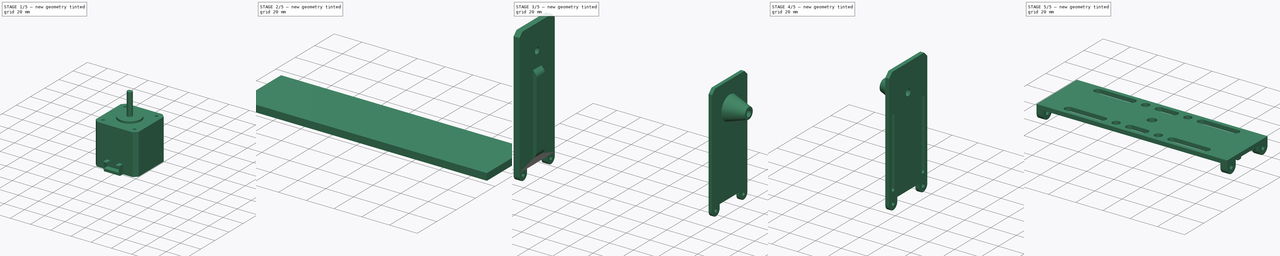
[diagram: build sequence overview — one tinted view per stage of 5, left to right]
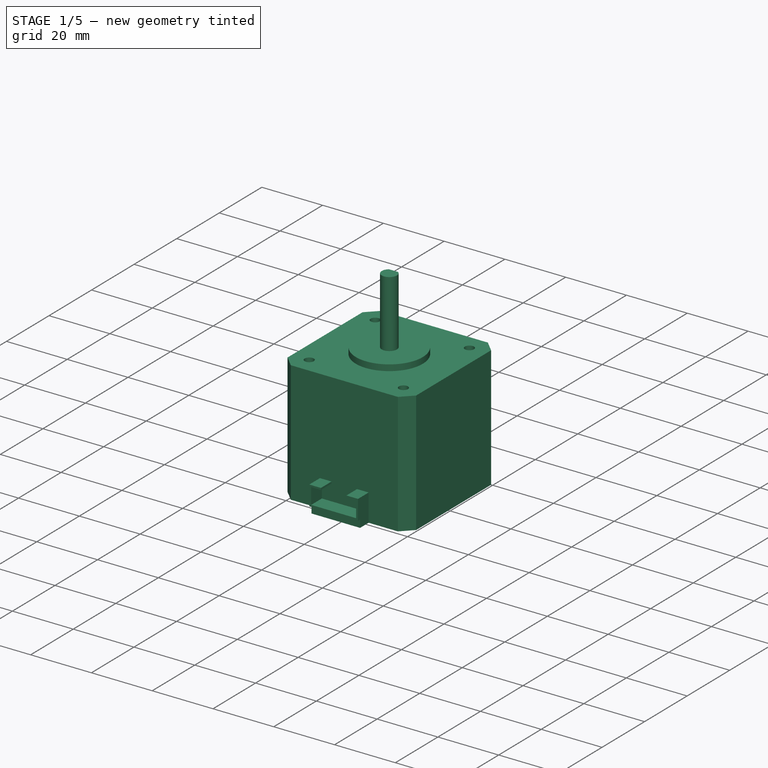
[diagram: stage 1 of 5 — iso view after this stage's code; geometry added in this stage tinted green]
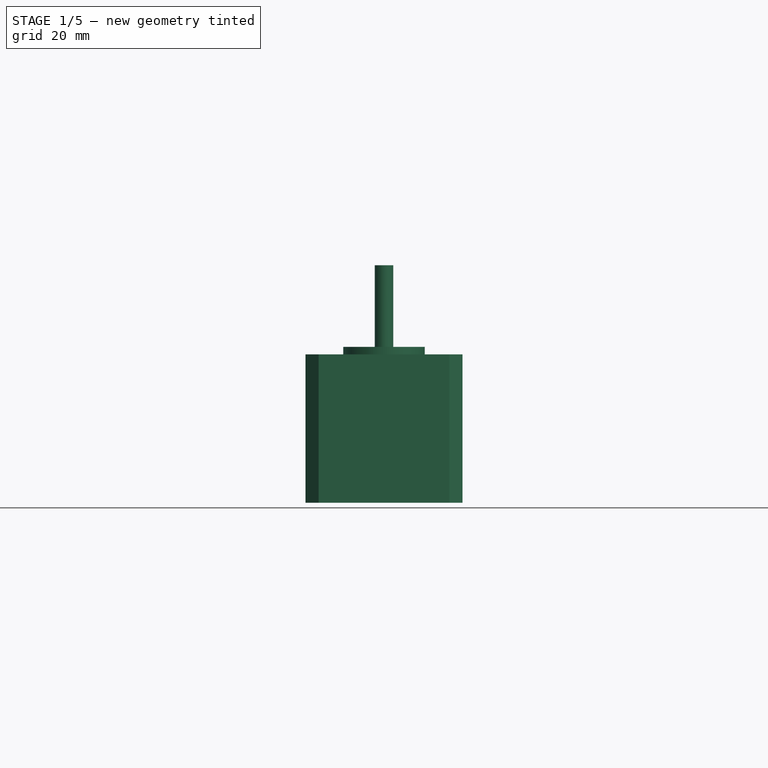
[diagram: stage 1 of 5 — front view after this stage's code; geometry added in this stage tinted green]
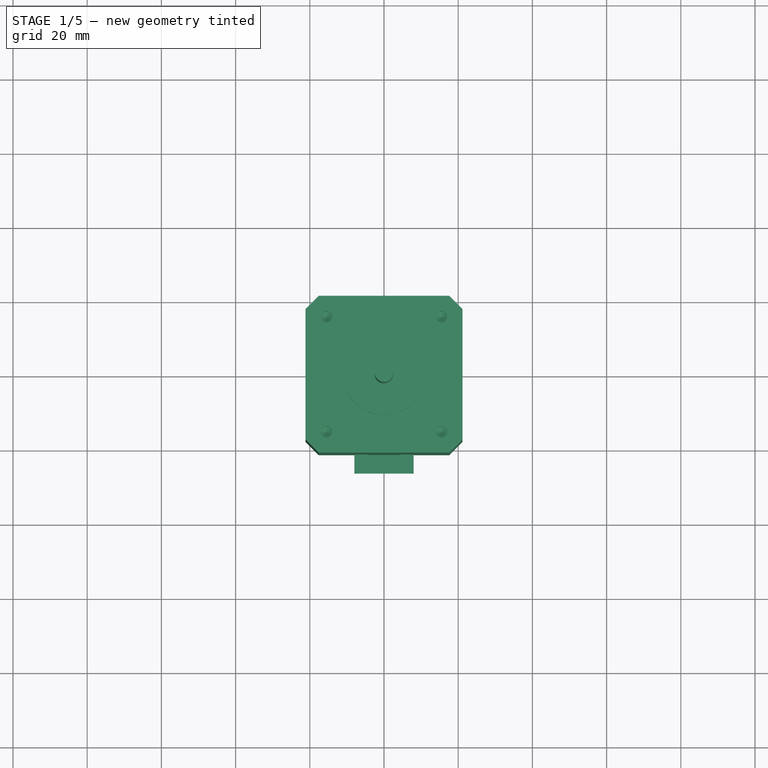
[diagram: stage 1 of 5 — top view after this stage's code; geometry added in this stage tinted green]
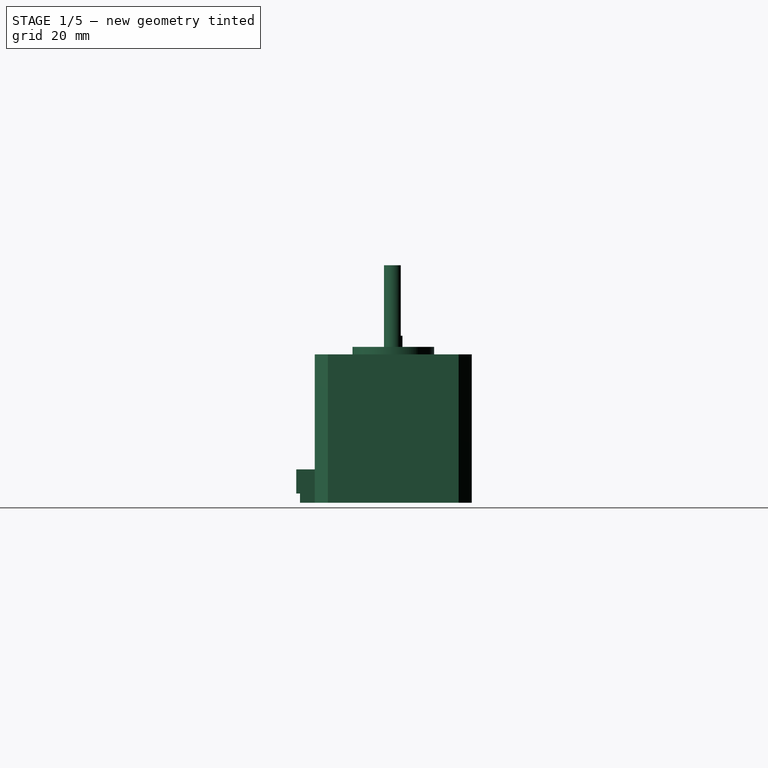
[diagram: stage 1 of 5 — right view after this stage's code; geometry added in this stage tinted green]
FCSTD DOCUMENT  (FreeCAD 0.21R33668 +26 (Git))
Label: elevation-rotation-table-mk-2
License: All rights reserved
LicenseURL: http://en.wikipedia.org/wiki/All_rights_reserved
objects: Sketcher::SketchObject×45, PartDesign::Pad×21, PartDesign::SubShapeBinder×17, PartDesign::Pocket×8, PartDesign::Body×7, PartDesign::Fillet×6, PartDesign::AdditiveLoft×4, PartDesign::Plane×3, PartDesign::Hole×2, PartDesign::Mirrored×1
note: 155 computed .brp shape members not serialized (recipe doc carries the construction recipe); baked Part::Feature solids carry a one-line shape summary decoded from their .brp

FEATURE [Sketcher::SketchObject] Sketch
  FullyConstrained = true
  MapMode = 5
  Support = -> [XY_Plane]
  sketch-geometry (18):
    g0: LineSegment StartX=-17.6145 StartY=21.15 StartZ=0 EndX=17.6145 EndY=21.15 EndZ=0
    g1: LineSegment StartX=17.6145 StartY=21.15 StartZ=0 EndX=21.15 EndY=17.6145 EndZ=0
    g2: LineSegment StartX=21.15 StartY=17.6145 StartZ=0 EndX=21.15 EndY=-17.6145 EndZ=0
    g3: LineSegment StartX=21.15 StartY=-17.6145 StartZ=0 EndX=17.6145 EndY=-21.15 EndZ=0
    g4: LineSegment StartX=17.6145 StartY=-21.15 StartZ=0 EndX=-17.6145 EndY=-21.15 EndZ=0
    g5: LineSegment StartX=-17.6145 StartY=-21.15 StartZ=0 EndX=-21.15 EndY=-17.6145 EndZ=0
    g6: LineSegment StartX=-21.15 StartY=-17.6145 StartZ=0 EndX=-21.15 EndY=17.6145 EndZ=0
    g7: LineSegment StartX=-21.15 StartY=17.6145 StartZ=0 EndX=-17.6145 EndY=21.15 EndZ=0
    g8: LineSegment StartX=-21.15 StartY=17.6145 StartZ=0 EndX=21.15 EndY=17.6145 EndZ=0
    g9: LineSegment StartX=-17.6145 StartY=-21.15 StartZ=0 EndX=-17.6145 EndY=21.15 EndZ=0
    g10: LineSegment StartX=17.6145 StartY=21.15 StartZ=0 EndX=17.6145 EndY=-21.15 EndZ=0
    g11: LineSegment StartX=21.15 StartY=-17.6145 StartZ=0 EndX=-21.15 EndY=-17.6145 EndZ=0
    g12: GeomPoint X=-17.6145 Y=17.6145 Z=0
    g13: GeomPoint X=17.6145 Y=17.6145 Z=0
    g14: GeomPoint X=17.6145 Y=-17.6145 Z=0
    g15: GeomPoint X=-17.6145 Y=-17.6145 Z=0
    g16: LineSegment StartX=-17.6145 StartY=17.6145 StartZ=0 EndX=17.6145 EndY=-17.6145 EndZ=0
    g17: LineSegment StartX=17.6145 StartY=17.6145 StartZ=0 EndX=-17.6145 EndY=-17.6145 EndZ=0
  constraints (44):
    c: Horizontal(g0)
    c: Coincident(g1,g0)
    c: Coincident(g2,g1)
    c: Vertical(g2)
    c: Coincident(g3,g2)
    c: Coincident(g4,g3)
    c: Horizontal(g4)
    c: Coincident(g5,g4)
    c: Coincident(g6,g5)
    c: Vertical(g6)
    c: Coincident(g7,g6)
    c: Coincident(g7,g0)
    c: Coincident(g8,g6)
    c: Coincident(g8,g1)
    c: Horizontal(g8)
    c: Coincident(g9,g4)
    c: Coincident(g9,g0)
    c: Vertical(g9)
    c: Distance(g8) = 42.3
    c: Distance(g9) = 42.3
    c: Equal(g3,g5)
    c: Equal(g1,g3)
    c: Equal(g7,g1)
    c: Coincident(g10,g0)
    c: Coincident(g10,g3)
    c: Vertical(g10)
    c: Coincident(g11,g2)
    c: Coincident(g11,g5)
    c: PointOnObject(g12,g8)
    c: PointOnObject(g13,g8)
    c: PointOnObject(g14,g11)
    c: PointOnObject(g15,g9)
    c: PointOnObject(g12,g9)
    c: PointOnObject(g14,g10)
    c: PointOnObject(g15,g11)
    c: Coincident(g16,g12)
    c: Coincident(g16,g14)
    c: Coincident(g17,g13)
    c: Coincident(g17,g15)
    c: PointOnObject(g-1,g16)
    c: PointOnObject(g13,g10)
    c: PointOnObject(g-1,g17)
    c: Equal(g2,g4)
    c: Distance(g1) = 5
FEATURE [PartDesign::Pad] Pad
  Direction = (0,0,1)
  Length = 40
  Length2 = 10
  Profile = -> Sketch
  ReferenceAxis = -> Sketch [N_Axis]
  Type = 0
FEATURE [Sketcher::SketchObject] Sketch001
  FullyConstrained = true
  MapMode = 5
  Placement = pos=(0,0,40) rot=(0,0,1;0rad)
  Support = -> [Pad]
  sketch-geometry (10):
    g0: Circle CenterX=15.5 CenterY=15.5 CenterZ=0 NormalX=0 NormalY=0 NormalZ=1 AngleXU=0 Radius=1.5
    g1: Circle CenterX=-15.5 CenterY=15.5 CenterZ=0 NormalX=0 NormalY=0 NormalZ=1 AngleXU=0 Radius=1.5
    g2: Circle CenterX=-15.5 CenterY=-15.5 CenterZ=0 NormalX=0 NormalY=0 NormalZ=1 AngleXU=0 Radius=1.5
    g3: Circle CenterX=15.5 CenterY=-15.5 CenterZ=0 NormalX=0 NormalY=0 NormalZ=1 AngleXU=0 Radius=1.5
    g4: LineSegment StartX=-15.5 StartY=15.5 StartZ=0 EndX=15.5 EndY=15.5 EndZ=0
    g5: LineSegment StartX=15.5 StartY=15.5 StartZ=0 EndX=15.5 EndY=-15.5 EndZ=0
    g6: LineSegment StartX=15.5 StartY=-15.5 StartZ=0 EndX=-15.5 EndY=-15.5 EndZ=0
    g7: LineSegment StartX=-15.5 StartY=-15.5 StartZ=0 EndX=-15.5 EndY=15.5 EndZ=0
    g8: LineSegment StartX=-15.5 StartY=15.5 StartZ=0 EndX=15.5 EndY=-15.5 EndZ=0
    g9: LineSegment StartX=15.5 StartY=15.5 StartZ=0 EndX=-15.5 EndY=-15.5 EndZ=0
  constraints (24):
    c: Diameter(g0) = 3
    c: Equal(g1,g0)
    c: Equal(g1,g2)
    c: Equal(g0,g3)
    c: Coincident(g4,g5)
    c: Coincident(g5,g6)
    c: Coincident(g6,g7)
    c: Coincident(g7,g4)
    c: Horizontal(g4)
    c: Horizontal(g6)
    c: Vertical(g5)
    c: Vertical(g7)
    c: Coincident(g4,g1)
    c: Coincident(g5,g3)
    c: Coincident(g4,g0)
    c: Coincident(g6,g2)
    c: Distance(g4) = 31
    c: Coincident(g8,g1)
    c: Coincident(g8,g3)
    c: Coincident(g9,g0)
    c: Coincident(g9,g2)
    c: PointOnObject(g-1,g8)
    c: PointOnObject(g-1,g9)
    c: Equal(g4,g5)
FEATURE [PartDesign::Hole] Hole
  BaseFeature = -> Pad
  CustomThreadClearance = 0
  Depth = 4.5
  DepthType = 0
  Diameter = 3
  DrillForDepth = false
  DrillPoint = 1
  DrillPointAngle = 118
  HoleCutCountersinkAngle = 90
  HoleCutCustomValues = false
  HoleCutDepth = 0
  HoleCutDiameter = 6.1
  HoleCutType = 0
  ModelThread = false
  Profile = -> Sketch001
  Tapered = false
  TaperedAngle = 90
  ThreadClass = 0
  ThreadDepth = 4.5
  ThreadDepthType = 0
  ThreadDirection = 0
  ThreadFit = 0
  ThreadSize = 0
  ThreadType = 0
  Threaded = false
  UseCustomThreadClearance = false
FEATURE [Sketcher::SketchObject] Sketch002
  ExternalGeometry = -> [Hole]
  FullyConstrained = true
  MapMode = 5
  Support = -> [XY_Plane]
  sketch-geometry (4):
    g0: Circle CenterX=-15.5 CenterY=15.5 CenterZ=0 NormalX=0 NormalY=0 NormalZ=1 AngleXU=0 Radius=1.5
    g1: Circle CenterX=-15.5 CenterY=-15.5 CenterZ=0 NormalX=0 NormalY=0 NormalZ=1 AngleXU=0 Radius=1.5
    g2: Circle CenterX=15.5 CenterY=-15.5 CenterZ=0 NormalX=0 NormalY=0 NormalZ=1 AngleXU=0 Radius=1.5
    g3: Circle CenterX=15.5 CenterY=15.5 CenterZ=0 NormalX=0 NormalY=0 NormalZ=1 AngleXU=0 Radius=1.5
  constraints (8):
    c: Coincident(g0,g-3)
    c: Coincident(g1,g-6)
    c: Coincident(g2,g-5)
    c: Coincident(g3,g-4)
    c: Equal(g-3,g1)
    c: Equal(g2,g-3)
    c: Equal(g-4,g0)
    c: Equal(g0,g3)
FEATURE [PartDesign::Hole] Hole001
  BaseFeature = -> Hole
  CustomThreadClearance = 0
  Depth = 4.5
  DepthType = 0
  Diameter = 3
  DrillForDepth = false
  DrillPoint = 1
  DrillPointAngle = 118
  HoleCutCountersinkAngle = 90
  HoleCutCustomValues = false
  HoleCutDepth = 0
  HoleCutDiameter = 6.1
  HoleCutType = 0
  ModelThread = false
  Profile = -> Sketch002
  Reversed = true
  Tapered = false
  TaperedAngle = 90
  ThreadClass = 0
  ThreadDepth = 4.5
  ThreadDepthType = 0
  ThreadDirection = 0
  ThreadFit = 0
  ThreadSize = 0
  ThreadType = 0
  Threaded = false
  UseCustomThreadClearance = false
FEATURE [Sketcher::SketchObject] Sketch003
  FullyConstrained = true
  MapMode = 5
  Placement = pos=(0,0,40) rot=(0,0,1;0rad)
  Support = -> [Hole001]
  sketch-geometry (1):
    g0: Circle CenterX=0 CenterY=0 CenterZ=0 NormalX=0 NormalY=0 NormalZ=1 AngleXU=0 Radius=11
  constraints (2):
    c: Coincident(g0,g-1)
    c: Diameter(g0) = 22
FEATURE [PartDesign::Pad] Pad001
  BaseFeature = -> Hole001
  Direction = (0,0,1)
  Length = 2
  Length2 = 10
  Profile = -> Sketch003
  ReferenceAxis = -> Sketch003 [N_Axis]
  Type = 0
FEATURE [Sketcher::SketchObject] Sketch004
  FullyConstrained = true
  MapMode = 5
  Placement = pos=(0,0,42) rot=(0,0,1;0rad)
  Support = -> [Pad001]
  sketch-geometry (4):
    g0: ArcOfCircle CenterX=0 CenterY=0 CenterZ=0 NormalX=0 NormalY=0 NormalZ=1 AngleXU=0 Radius=2.5 StartAngle=2.2143 EndAngle=7.21048
    g1: LineSegment StartX=-1.5 StartY=2 StartZ=0 EndX=1.5 EndY=2 EndZ=0
    g2: GeomPoint X=0 Y=2 Z=0
    g3: GeomPoint X=0 Y=-2.5 Z=0
  constraints (10):
    c: Coincident(g0,g-1)
    c: Coincident(g1,g0)
    c: Coincident(g1,g0)
    c: Parallel(g1,g-1)
    c: Diameter(g0) = 5
    c: PointOnObject(g2,g1)
    c: PointOnObject(g2,g-2)
    c: PointOnObject(g3,g0)
    c: Distance(g3,g2) = 4.5
    c: PointOnObject(g3,g-2)
FEATURE [PartDesign::Pad] Pad002
  BaseFeature = -> Pad001
  Direction = (0,0,1)
  Length = 22
  Length2 = 10
  Profile = -> Sketch004
  ReferenceAxis = -> Sketch004 [N_Axis]
  Type = 0
FEATURE [Sketcher::SketchObject] Sketch005
  FullyConstrained = true
  MapMode = 5
  Placement = pos=(0,0,42) rot=(0,0,1;0rad)
  Support = -> [Pad001]
  sketch-geometry (1):
    g0: Circle CenterX=0 CenterY=0 CenterZ=0 NormalX=0 NormalY=0 NormalZ=1 AngleXU=0 Radius=2.5
  constraints (2):
    c: Coincident(g0,g-1)
    c: Diameter(g0) = 5
FEATURE [PartDesign::Pad] Pad003
  BaseFeature = -> Pad002
  Direction = (0,0,1)
  Length = 3
  Length2 = 10
  Profile = -> Sketch005
  ReferenceAxis = -> Sketch005 [N_Axis]
  Type = 0
FEATURE [Sketcher::SketchObject] Sketch006
  ExternalGeometry = -> [Pad003]
  FullyConstrained = true
  MapMode = 5
  Placement = pos=(0,0,0) rot=(1,0,0;3.14159rad)
  Support = -> [Pad003]
  sketch-geometry (4):
    g0: LineSegment StartX=-8 StartY=21.15 StartZ=0 EndX=8 EndY=21.15 EndZ=0
    g1: LineSegment StartX=8 StartY=21.15 StartZ=0 EndX=8 EndY=25.15 EndZ=0
    g2: LineSegment StartX=8 StartY=25.15 StartZ=0 EndX=-8 EndY=25.15 EndZ=0
    g3: LineSegment StartX=-8 StartY=25.15 StartZ=0 EndX=-8 EndY=21.15 EndZ=0
  constraints (11):
    c: Coincident(g0,g1)
    c: Coincident(g1,g2)
    c: Coincident(g2,g3)
    c: Coincident(g3,g0)
    c: Horizontal(g2)
    c: Vertical(g1)
    c: Vertical(g3)
    c: PointOnObject(g0,g-3)
    c: Symmetric(g0,g0,g-2)
    c: Distance(g2) = 16
    c: Distance(g1) = 4
FEATURE [PartDesign::Pad] Pad004
  BaseFeature = -> Pad003
  Direction = (0,0,-1)
  Length = 2.5
  Length2 = 10
  Profile = -> Sketch006
  ReferenceAxis = -> Sketch006 [N_Axis]
  Reversed = true
  Type = 0
FEATURE [Sketcher::SketchObject] Sketch007
  ExternalGeometry = -> [Pad004]
  FullyConstrained = true
  MapMode = 5
  Placement = pos=(0,-21.15,0) rot=(1,0,0;1.5708rad)
  Support = -> [Pad004]
  sketch-geometry (14):
    g0: LineSegment StartX=-4.2 StartY=9 StartZ=0 EndX=-8 EndY=9 EndZ=0
    g1: LineSegment StartX=-8 StartY=9 StartZ=0 EndX=-8 EndY=2.5 EndZ=0
    g2: LineSegment StartX=-8 StartY=2.5 StartZ=0 EndX=8 EndY=2.5 EndZ=0
    g3: LineSegment StartX=8 StartY=2.5 StartZ=0 EndX=8 EndY=9 EndZ=0
    g4: LineSegment StartX=8 StartY=9 StartZ=0 EndX=4.2 EndY=9 EndZ=0
    g5: LineSegment StartX=4.2 StartY=9 StartZ=0 EndX=4.2 EndY=8.4 EndZ=0
    g6: LineSegment StartX=4.2 StartY=8.4 StartZ=0 EndX=7.4 EndY=8.4 EndZ=0
    g7: LineSegment StartX=7.4 StartY=8.4 StartZ=0 EndX=7.4 EndY=3.1 EndZ=0
    g8: LineSegment StartX=7.4 StartY=3.1 StartZ=0 EndX=-7.4 EndY=3.1 EndZ=0
    g9: LineSegment StartX=-7.4 StartY=3.1 StartZ=0 EndX=-7.4 EndY=8.4 EndZ=0
    g10: LineSegment StartX=-7.4 StartY=8.4 StartZ=0 EndX=-4.2 EndY=8.4 EndZ=0
    g11: LineSegment StartX=-4.2 StartY=8.4 StartZ=0 EndX=-4.2 EndY=9 EndZ=0
    g12: LineSegment StartX=7.4 StartY=3.1 StartZ=0 EndX=7.4 EndY=2.5 EndZ=0
    g13: LineSegment StartX=7.4 StartY=3.1 StartZ=0 EndX=8 EndY=3.1 EndZ=0
  constraints (39):
    c: Horizontal(g0)
    c: Coincident(g1,g0)
    c: Coincident(g1,g-3)
    c: Coincident(g2,g1)
    c: Coincident(g2,g-3)
    c: Coincident(g3,g2)
    c: Coincident(g4,g3)
    c: Horizontal(g4)
    c: Equal(g4,g0)
    c: Vertical(g1)
    c: Vertical(g3)
    c: Equal(g1,g3)
    c: Distance(g3) = 6.5
    c: Distance(g4) = 3.8
    c: Coincident(g5,g4)
    c: Vertical(g5)
    c: Coincident(g6,g5)
    c: Horizontal(g6)
    c: Coincident(g7,g6)
    c: Vertical(g7)
    c: Coincident(g8,g7)
    c: Horizontal(g8)
    c: Coincident(g9,g8)
    c: Vertical(g9)
    c: Coincident(g10,g9)
    c: Coincident(g11,g10)
    c: Coincident(g11,g0)
    c: Vertical(g11)
    c: Horizontal(g10)
    c: Distance(g5) = 0.6
    c: Symmetric(g9,g6,g-2)
    c: Coincident(g12,g7)
    c: PointOnObject(g12,g2)
    c: Vertical(g12)
    c: Equal(g12,g5)
    c: Coincident(g13,g7)
    c: PointOnObject(g13,g3)
    c: Horizontal(g13)
    c: Equal(g13,g5)
FEATURE [PartDesign::Pad] Pad005
  BaseFeature = -> Pad004
  Direction = (0,-1,2e-16)
  Length = 5
  Length2 = 10
  Profile = -> Sketch007
  ReferenceAxis = -> Sketch007 [N_Axis]
  Type = 0
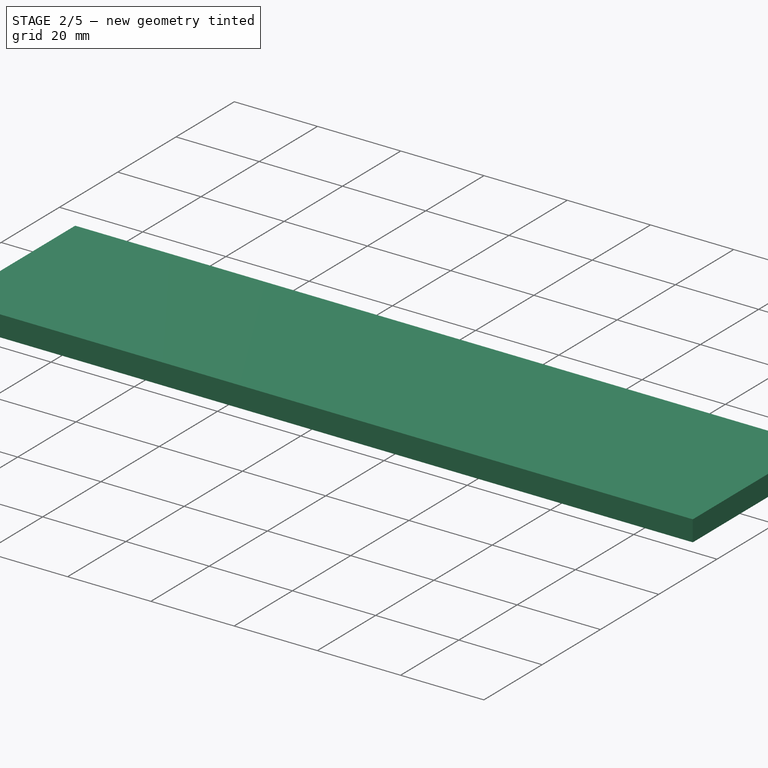
[diagram: stage 2 of 5 — iso view after this stage's code; geometry added in this stage tinted green]
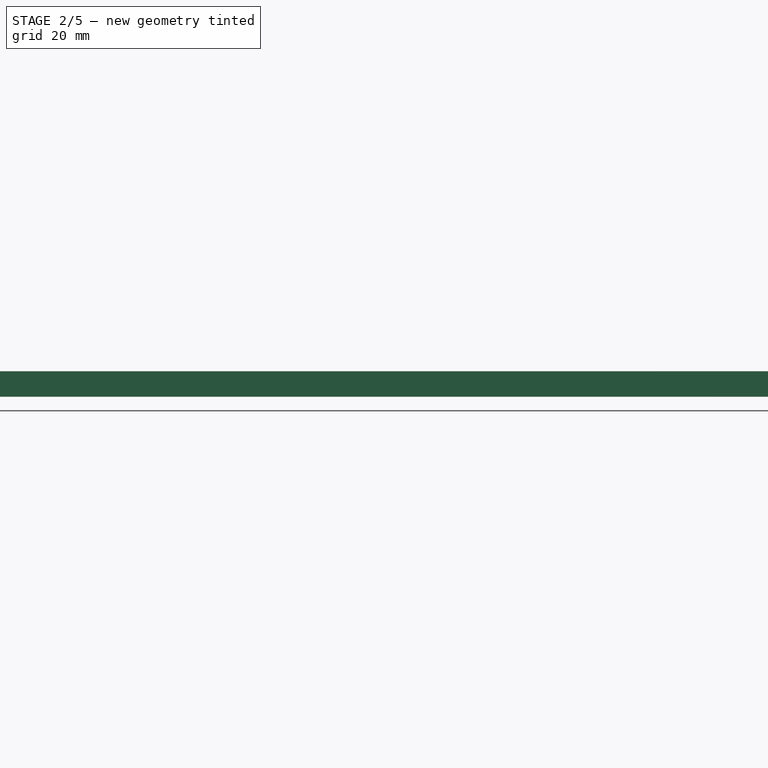
[diagram: stage 2 of 5 — front view after this stage's code; geometry added in this stage tinted green]
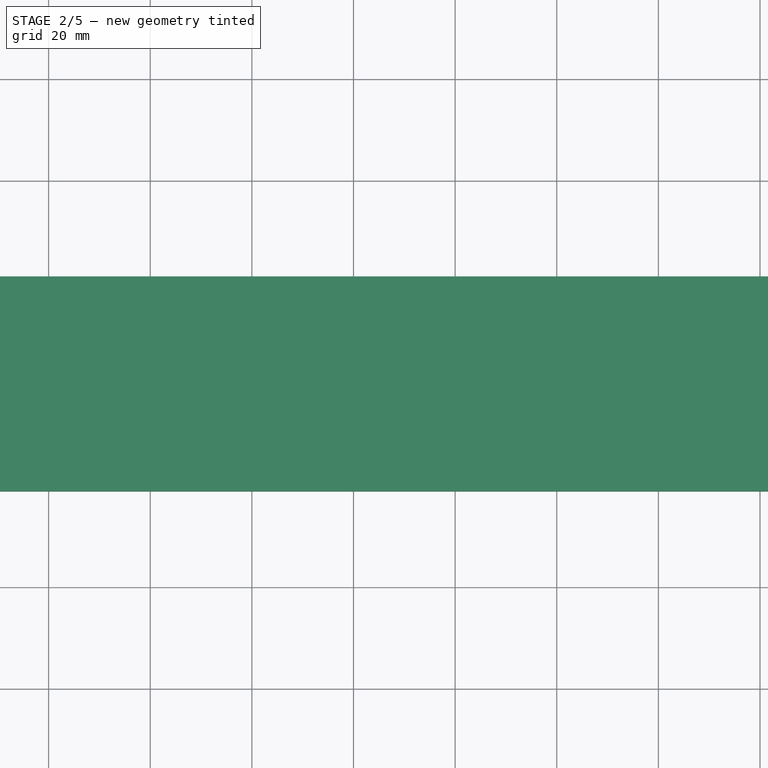
[diagram: stage 2 of 5 — top view after this stage's code; geometry added in this stage tinted green]
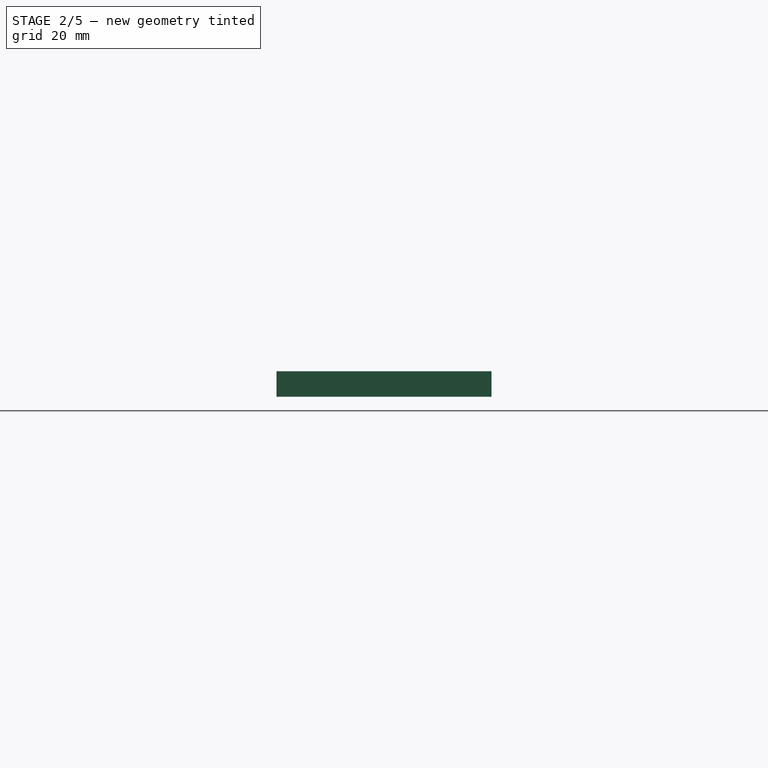
[diagram: stage 2 of 5 — right view after this stage's code; geometry added in this stage tinted green]
FEATURE [Sketcher::SketchObject] Sketch008
  ExternalGeometry = -> [Pad005]
  FullyConstrained = true
  MapMode = 5
  Placement = pos=(0,-21.15,0) rot=(1,0,0;1.5708rad)
  Support = -> [Pad005]
  sketch-geometry (30):
    g0: LineSegment StartX=-5.5 StartY=6.6 StartZ=0 EndX=-5 EndY=6.6 EndZ=0
    g1: LineSegment StartX=-5 StartY=6.6 StartZ=0 EndX=-5 EndY=6.1 EndZ=0
    g2: LineSegment StartX=-5 StartY=6.1 StartZ=0 EndX=-5.5 EndY=6.1 EndZ=0
    g3: LineSegment StartX=-5.5 StartY=6.1 StartZ=0 EndX=-5.5 EndY=6.6 EndZ=0
    g4: LineSegment StartX=-3.4 StartY=6.6 StartZ=0 EndX=-2.9 EndY=6.6 EndZ=0
    g5: LineSegment StartX=-2.9 StartY=6.6 StartZ=0 EndX=-2.9 EndY=6.1 EndZ=0
    g6: LineSegment StartX=-2.9 StartY=6.1 StartZ=0 EndX=-3.4 EndY=6.1 EndZ=0
    g7: LineSegment StartX=-3.4 StartY=6.1 StartZ=0 EndX=-3.4 EndY=6.6 EndZ=0
    g8: LineSegment StartX=-1.3 StartY=6.6 StartZ=0 EndX=-0.8 EndY=6.6 EndZ=0
    g9: LineSegment StartX=-0.8 StartY=6.6 StartZ=0 EndX=-0.8 EndY=6.1 EndZ=0
    g10: LineSegment StartX=-0.8 StartY=6.1 StartZ=0 EndX=-1.3 EndY=6.1 EndZ=0
    g11: LineSegment StartX=-1.3 StartY=6.1 StartZ=0 EndX=-1.3 EndY=6.6 EndZ=0
    g12: LineSegment StartX=0.8 StartY=6.6 StartZ=0 EndX=1.3 EndY=6.6 EndZ=0
    g13: LineSegment StartX=1.3 StartY=6.6 StartZ=0 EndX=1.3 EndY=6.1 EndZ=0
    g14: LineSegment StartX=1.3 StartY=6.1 StartZ=0 EndX=0.8 EndY=6.1 EndZ=0
    g15: LineSegment StartX=0.8 StartY=6.1 StartZ=0 EndX=0.8 EndY=6.6 EndZ=0
    g16: LineSegment StartX=2.9 StartY=6.6 StartZ=0 EndX=3.4 EndY=6.6 EndZ=0
    g17: LineSegment StartX=3.4 StartY=6.6 StartZ=0 EndX=3.4 EndY=6.1 EndZ=0
    g18: LineSegment StartX=3.4 StartY=6.1 StartZ=0 EndX=2.9 EndY=6.1 EndZ=0
    g19: LineSegment StartX=2.9 StartY=6.1 StartZ=0 EndX=2.9 EndY=6.6 EndZ=0
    g20: LineSegment StartX=5 StartY=6.6 StartZ=0 EndX=5.5 EndY=6.6 EndZ=0
    g21: LineSegment StartX=5.5 StartY=6.6 StartZ=0 EndX=5.5 EndY=6.1 EndZ=0
    g22: LineSegment StartX=5.5 StartY=6.1 StartZ=0 EndX=5 EndY=6.1 EndZ=0
    g23: LineSegment StartX=5 StartY=6.1 StartZ=0 EndX=5 EndY=6.6 EndZ=0
    g24: LineSegment StartX=-7.4 StartY=6.1 StartZ=0 EndX=7.4 EndY=6.1 EndZ=0
    g25: LineSegment StartX=-5 StartY=6.6 StartZ=0 EndX=-3.4 EndY=6.6 EndZ=0
    g26: LineSegment StartX=-2.9 StartY=6.6 StartZ=0 EndX=-1.3 EndY=6.6 EndZ=0
    g27: LineSegment StartX=-0.8 StartY=6.6 StartZ=0 EndX=0.8 EndY=6.6 EndZ=0
    g28: LineSegment StartX=1.3 StartY=6.6 StartZ=0 EndX=2.9 EndY=6.6 EndZ=0
    g29: LineSegment StartX=3.4 StartY=6.6 StartZ=0 EndX=5 EndY=6.6 EndZ=0
  constraints (85):
    c: Coincident(g0,g1)
    c: Coincident(g1,g2)
    c: Coincident(g2,g3)
    c: Coincident(g3,g0)
    c: Horizontal(g0)
    c: Horizontal(g2)
    c: Vertical(g1)
    c: Vertical(g3)
    c: Coincident(g4,g5)
    c: Coincident(g5,g6)
    c: Coincident(g6,g7)
    c: Coincident(g7,g4)
    c: Horizontal(g4)
    c: Horizontal(g6)
    c: Vertical(g5)
    c: Vertical(g7)
    c: Coincident(g8,g9)
    c: Coincident(g9,g10)
    c: Coincident(g10,g11)
    c: Coincident(g11,g8)
    c: Horizontal(g8)
    c: Horizontal(g10)
    c: Vertical(g9)
    c: Vertical(g11)
    c: Coincident(g12,g13)
    c: Coincident(g13,g14)
    c: Coincident(g14,g15)
    c: Coincident(g15,g12)
    c: Horizontal(g12)
    c: Horizontal(g14)
    c: Vertical(g13)
    c: Vertical(g15)
    c: Coincident(g16,g17)
    c: Coincident(g17,g18)
    c: Coincident(g18,g19)
    c: Coincident(g19,g16)
    c: Horizontal(g16)
    c: Horizontal(g18)
    c: Vertical(g17)
    c: Vertical(g19)
    c: Coincident(g20,g21)
    c: Coincident(g21,g22)
    c: Coincident(g22,g23)
    c: Coincident(g23,g20)
    c: Horizontal(g20)
    c: Horizontal(g22)
    c: Vertical(g21)
    c: Vertical(g23)
    c: Equal(g20,g21)
    c: Equal(g16,g17)
    c: Equal(g12,g13)
    c: Equal(g8,g9)
    c: Equal(g4,g5)
    c: Equal(g0,g1)
    c: Equal(g1,g5)
    c: Equal(g5,g9)
    c: Equal(g9,g13)
    c: Equal(g13,g17)
    c: Equal(g17,g21)
    c: PointOnObject(g2,g24)
    c: PointOnObject(g6,g24)
    c: PointOnObject(g10,g24)
    c: PointOnObject(g24,g-4)
    c: Distance(g0) = 0.5
    c: Coincident(g25,g0)
    c: Coincident(g25,g4)
    c: Horizontal(g25)
    c: Coincident(g26,g4)
    c: Coincident(g26,g8)
    c: Coincident(g27,g8)
    c: Coincident(g27,g12)
    c: Horizontal(g27)
    c: Coincident(g28,g12)
    c: Coincident(g28,g16)
    c: Horizontal(g28)
    c: Coincident(g29,g16)
    c: Coincident(g29,g20)
    c: Equal(g25,g26)
    c: Equal(g26,g27)
    c: Equal(g27,g28)
    c: Equal(g28,g29)
    c: Distance(g25) = 1.6
    c: Distance(g24,g-5) = 3
    c: Symmetric(g2,g21,g-2)
    c: PointOnObject(g24,g-3)
FEATURE [PartDesign::Pad] Pad006
  BaseFeature = -> Pad005
  Direction = (0,-1,2e-16)
  Length = 4
  Length2 = 10
  Profile = -> Sketch008
  ReferenceAxis = -> Sketch008 [N_Axis]
  Type = 0
FEATURE [PartDesign::Body] Body  label="Motor"
  Group = -> [Sketch,Pad,Sketch001,Hole,Sketch002,Hole001,Sketch003,Pad001,Sketch004,Pad002,Sketch005,Pad003,Sketch006,Pad004,Sketch007,Pad005,Sketch008,Pad006]
  Origin = -> Origin
  Placement = pos=(0,0,0) rot=(0.707107,0,-0.707107;3.14159rad)
  Tip = -> Pad006
FEATURE [PartDesign::SubShapeBinder] Binder
  BindCopyOnChange = 0
  BindMode = 0
  ClaimChildren = false
  Context = -> Body001 [Binder.]
  Fuse = false
  MakeFace = true
  OffsetFill = false
  OffsetIntersection = false
  OffsetJoinType = 0
  OffsetOpenResult = false
  PartialLoad = false
  Relative = true
  Support = -> [Body[Pad006.Face5]]
  _Version = 2
FEATURE [PartDesign::SubShapeBinder] Binder001
  BindCopyOnChange = 0
  BindMode = 0
  ClaimChildren = false
  Context = -> Body001 [Binder001.]
  Fuse = false
  MakeFace = true
  OffsetFill = false
  OffsetIntersection = false
  OffsetJoinType = 0
  OffsetOpenResult = false
  PartialLoad = false
  Relative = true
  Support = -> [Body[Pad006.Face82]]
  _Version = 2
FEATURE [PartDesign::SubShapeBinder] Binder002
  BindCopyOnChange = 0
  BindMode = 0
  ClaimChildren = false
  Context = -> Body001 [Binder002.]
  Fuse = false
  MakeFace = true
  OffsetFill = false
  OffsetIntersection = false
  OffsetJoinType = 0
  OffsetOpenResult = false
  PartialLoad = false
  Relative = true
  Support = -> [Body[Pad006.Edge191]]
  _Version = 2
FEATURE [Sketcher::SketchObject] Sketch009
  ExternalGeometry = -> [Binder]
  FullyConstrained = true
  MapMode = 5
  Placement = pos=(-40,0,0) rot=(0.57735,-0.57735,-0.57735;2.0944rad)
  Support = -> [Binder]
  sketch-geometry (28):
    g0: Circle CenterX=-15.5 CenterY=15.5 CenterZ=0 NormalX=0 NormalY=0 NormalZ=1 AngleXU=0 Radius=1.5
    g1: Circle CenterX=15.5 CenterY=15.5 CenterZ=0 NormalX=0 NormalY=0 NormalZ=1 AngleXU=0 Radius=1.5
    g2: Circle CenterX=15.5 CenterY=-15.5 CenterZ=0 NormalX=0 NormalY=0 NormalZ=1 AngleXU=0 Radius=1.5
    g3: Circle CenterX=-15.5 CenterY=-15.5 CenterZ=0 NormalX=0 NormalY=0 NormalZ=1 AngleXU=0 Radius=1.5
    g4: Circle CenterX=0 CenterY=0 CenterZ=0 NormalX=0 NormalY=0 NormalZ=1 AngleXU=0 Radius=13
    g5: LineSegment StartX=11 StartY=0 StartZ=0 EndX=13 EndY=0 EndZ=0
    g6: LineSegment StartX=-21.15 StartY=-17.6145 StartZ=0 EndX=-21.15 EndY=17.6145 EndZ=0
    g7: LineSegment StartX=-21.15 StartY=17.6145 StartZ=0 EndX=-17.6145 EndY=21.15 EndZ=0
    g8: LineSegment StartX=-17.6145 StartY=21.15 StartZ=0 EndX=17.6145 EndY=21.15 EndZ=0
    g9: LineSegment StartX=17.6145 StartY=21.15 StartZ=0 EndX=21.15 EndY=17.6145 EndZ=0
    g10: LineSegment StartX=21.15 StartY=17.6145 StartZ=0 EndX=21.15 EndY=-17.6145 EndZ=0
    g11: LineSegment StartX=21.15 StartY=-17.6145 StartZ=0 EndX=21.15 EndY=-85 EndZ=0
    g12: LineSegment StartX=-21.15 StartY=-85 StartZ=0 EndX=-21.15 EndY=-17.6145 EndZ=0
    g13: Circle CenterX=-16.65 CenterY=-88 CenterZ=0 NormalX=0 NormalY=0 NormalZ=1 AngleXU=0 Radius=1.5
    g14: Circle CenterX=16.65 CenterY=-88 CenterZ=0 NormalX=0 NormalY=0 NormalZ=1 AngleXU=0 Radius=1.5
    g15: LineSegment StartX=-21.15 StartY=-85 StartZ=0 EndX=-21.15 EndY=-88 EndZ=0
    g16: LineSegment StartX=-12.15 StartY=-88 StartZ=0 EndX=-12.15 EndY=-85 EndZ=0
    g17: LineSegment StartX=-12.15 StartY=-85 StartZ=0 EndX=12.15 EndY=-85 EndZ=0
    g18: LineSegment StartX=12.15 StartY=-85 StartZ=0 EndX=12.15 EndY=-88 EndZ=0
    g19: LineSegment StartX=21.15 StartY=-88 StartZ=0 EndX=21.15 EndY=-85 EndZ=0
    g20: ArcOfCircle CenterX=-16.65 CenterY=-88 CenterZ=0 NormalX=0 NormalY=0 NormalZ=1 AngleXU=0 Radius=4.5 StartAngle=3.14159 EndAngle=6.28319
    g21: ArcOfCircle CenterX=16.65 CenterY=-88 CenterZ=0 NormalX=0 NormalY=0 NormalZ=1 AngleXU=0 Radius=4.5 StartAngle=3.14159 EndAngle=6.28319
    g22: LineSegment StartX=-16.65 StartY=-88 StartZ=0 EndX=16.65 EndY=-88 EndZ=0
    g23: LineSegment StartX=-21.15 StartY=-85 StartZ=0 EndX=-12.15 EndY=-85 EndZ=0
    g24: LineSegment StartX=12.15 StartY=-85 StartZ=0 EndX=21.15 EndY=-85 EndZ=0
    g25: LineSegment StartX=18.15 StartY=-88 StartZ=0 EndX=21.15 EndY=-88 EndZ=0
    g26: LineSegment StartX=16.65 StartY=-88 StartZ=0 EndX=16.65 EndY=-85 EndZ=0
    g27: GeomPoint X=0 Y=-85 Z=0
  constraints (70):
    c: Coincident(g0,g-6)
    c: Tangent(g0,g-6)
    c: Coincident(g1,g-7)
    c: Tangent(g1,g-7)
    c: Coincident(g2,g-12)
    c: Tangent(g2,g-12)
    c: Coincident(g3,g-13)
    c: Tangent(g3,g-13)
    c: Coincident(g4,g-8)
    c: PointOnObject(g5,g-8)
    c: PointOnObject(g5,g4)
    c: Horizontal(g5)
    c: PointOnObject(g5,g-1)
    c: Distance(g5) = 2
    c: Coincident(g6,g-14)
    c: Coincident(g6,g-5)
    c: Coincident(g7,g6)
    c: Coincident(g7,g-4)
    c: Coincident(g8,g7)
    c: Coincident(g8,g-10)
    c: Coincident(g9,g8)
    c: Coincident(g9,g-10)
    c: Coincident(g10,g9)
    c: Coincident(g10,g-11)
    c: Coincident(g11,g10)
    c: Vertical(g11)
    c: Coincident(g12,g6)
    c: Vertical(g12)
    c: Diameter(g14) = 3
    c: Equal(g14,g13)
    c: Coincident(g15,g12)
    c: Vertical(g15)
    c: Vertical(g16)
    c: Coincident(g17,g16)
    c: Horizontal(g17)
    c: Coincident(g18,g17)
    c: Vertical(g18)
    c: Coincident(g19,g11)
    c: Vertical(g19)
    c: Coincident(g20,g13)
    c: Coincident(g20,g15)
    c: Coincident(g20,g16)
    c: Coincident(g21,g14)
    c: Coincident(g21,g18)
    c: Coincident(g21,g19)
    c: Equal(g21,g20)
    c: Equal(g18,g16)
    c: Equal(g16,g15)
    c: Equal(g15,g19)
    c: Coincident(g22,g13)
    c: Coincident(g22,g14)
    c: Horizontal(g22)
    c: Coincident(g23,g12)
    c: Coincident(g23,g16)
    c: Coincident(g24,g17)
    c: Coincident(g24,g11)
    c: Horizontal(g24)
    c: Horizontal(g23)
    c: PointOnObject(g16,g22)
    c: PointOnObject(g25,g14)
    c: Coincident(g25,g19)
    c: Horizontal(g25)
    c: Distance(g25) = 3
    c: Coincident(g26,g14)
    c: PointOnObject(g26,g24)
    c: Vertical(g26)
    c: Equal(g26,g25)
    c: PointOnObject(g27,g17)
    c: Distance(g27,g4) = 85
    c: PointOnObject(g27,g-2)
FEATURE [PartDesign::Pad] Pad007
  Direction = (-1,0,0)
  Length = 5
  Length2 = 10
  Profile = -> Sketch009
  ReferenceAxis = -> Sketch009 [N_Axis]
  Type = 0
FEATURE [PartDesign::SubShapeBinder] Binder003
  BindCopyOnChange = 0
  BindMode = 0
  ClaimChildren = false
  Context = -> Body002 [Binder003.]
  Fuse = false
  MakeFace = true
  OffsetFill = false
  OffsetIntersection = false
  OffsetJoinType = 0
  OffsetOpenResult = false
  PartialLoad = false
  Relative = true
  Support = -> [Body001[Pad007.Face23]]
  _Version = 2
FEATURE [PartDesign::SubShapeBinder] Binder004
  BindCopyOnChange = 0
  BindMode = 0
  ClaimChildren = false
  Context = -> Body002 [Binder004.]
  Fuse = false
  MakeFace = true
  OffsetFill = false
  OffsetIntersection = false
  OffsetJoinType = 0
  OffsetOpenResult = false
  PartialLoad = false
  Relative = true
  Support = -> [Body001[Pad007.Face12]]
  _Version = 2
FEATURE [Sketcher::SketchObject] Sketch010
  ExternalGeometry = -> [Binder003]
  FullyConstrained = true
  MapMode = 5
  Placement = pos=(0,0,-85) rot=(1,0,0;3.14159rad)
  Support = -> [Binder004]
  sketch-geometry (4):
    g0: LineSegment StartX=-45 StartY=21.15 StartZ=0 EndX=-223 EndY=21.15 EndZ=0
    g1: LineSegment StartX=-223 StartY=21.15 StartZ=0 EndX=-223 EndY=-21.15 EndZ=0
    g2: LineSegment StartX=-223 StartY=-21.15 StartZ=0 EndX=-45 EndY=-21.15 EndZ=0
    g3: LineSegment StartX=-45 StartY=-21.15 StartZ=0 EndX=-45 EndY=21.15 EndZ=0
  constraints (10):
    c: Coincident(g0,g1)
    c: Coincident(g1,g2)
    c: Coincident(g2,g3)
    c: Coincident(g3,g0)
    c: Horizontal(g0)
    c: Horizontal(g2)
    c: Vertical(g1)
    c: Coincident(g0,g-3)
    c: Coincident(g2,g-4)
    c: Distance(g0) = 178
FEATURE [PartDesign::Pad] Pad008
  Direction = (0,0,-1)
  Length = 5
  Length2 = 10
  Profile = -> Sketch010
  ReferenceAxis = -> Sketch010 [N_Axis]
  Reversed = true
  Type = 0
FEATURE [Sketcher::SketchObject] Sketch024
  ExternalGeometry = -> [Pad007]
  FullyConstrained = true
  MapMode = 5
  Placement = pos=(-45,0,0) rot=(0.57735,-0.57735,-0.57735;2.0944rad)
  Support = -> [Pad007]
  sketch-geometry (4):
    g0: ArcOfCircle CenterX=0 CenterY=0 CenterZ=0 NormalX=0 NormalY=0 NormalZ=1 AngleXU=0 Radius=13 StartAngle=6.01059 EndAngle=6.55578
    g1: LineSegment StartX=12.52 StartY=3.5 StartZ=0 EndX=16.52 EndY=3.5 EndZ=0
    g2: LineSegment StartX=16.52 StartY=3.5 StartZ=0 EndX=16.52 EndY=-3.5 EndZ=0
    g3: LineSegment StartX=16.52 StartY=-3.5 StartZ=0 EndX=12.52 EndY=-3.5 EndZ=0
  constraints (11):
    c: Coincident(g0,g-3)
    c: PointOnObject(g0,g-3)
    c: Coincident(g1,g0)
    c: Horizontal(g1)
    c: Coincident(g2,g1)
    c: Coincident(g3,g2)
    c: Coincident(g3,g0)
    c: Horizontal(g3)
    c: Symmetric(g1,g2,g-1)
    c: Distance(g2) = 7
    c: Distance(g1) = 4
FEATURE [PartDesign::Pad] Pad012
  BaseFeature = -> Pad007
  Direction = (-1,0,0)
  Length = 6
  Length2 = 10
  Profile = -> Sketch024
  ReferenceAxis = -> Sketch024 [N_Axis]
  Type = 0
FEATURE [Sketcher::SketchObject] Sketch025
  AttachmentOffset = pos=(0,0,-2) rot=(0,0,1;0rad)
  ExternalGeometry = -> [Pad012]
  FullyConstrained = true
  MapMode = 5
  Placement = pos=(0,-14.52,-4e-16) rot=(1,0,0;1.5708rad)
  Support = -> [Pad012]
  sketch-geometry (4):
    g0: LineSegment StartX=-49.5 StartY=3.5 StartZ=0 EndX=-45 EndY=3.5 EndZ=0
    g1: LineSegment StartX=-45 StartY=3.5 StartZ=0 EndX=-45 EndY=-2 EndZ=0
    g2: LineSegment StartX=-45 StartY=-2 StartZ=0 EndX=-49.5 EndY=-2 EndZ=0
    g3: LineSegment StartX=-49.5 StartY=-2 StartZ=0 EndX=-49.5 EndY=3.5 EndZ=0
  constraints (12):
    c: Coincident(g0,g1)
    c: Coincident(g1,g2)
    c: Horizontal(g0)
    c: Horizontal(g2)
    c: Vertical(g1)
    c: PointOnObject(g1,g-4)
    c: Coincident(g2,g3)
    c: Coincident(g0,g3)
    c: PointOnObject(g0,g-5)
    c: Vertical(g3)
    c: Distance(g2,g-6) = 1.5
    c: Distance(g-5,g0) = 1.5
FEATURE [PartDesign::Pocket] Pocket004
  BaseFeature = -> Pad012
  Direction = (0,1,-2e-16)
  Length = 2
  Length2 = 5
  Profile = -> Sketch025
  ReferenceAxis = -> Sketch025 [N_Axis]
  Type = 0
FEATURE [PartDesign::Fillet] Fillet001
  Base = -> Pocket004 [Edge75,Edge78,Edge81,Edge79]
  BaseFeature = -> Pocket004
  Radius = 1
  SupportTransform = false
  UseAllEdges = false
FEATURE [Sketcher::SketchObject] Sketch035
  ExternalGeometry = -> [Fillet001]
  FullyConstrained = true
  MapMode = 5
  Placement = pos=(-45,0,0) rot=(0.57735,-0.57735,-0.57735;2.0944rad)
  Support = -> [Fillet001]
  sketch-geometry (1):
    g0: LineSegment StartX=0 StartY=0 StartZ=0 EndX=0 EndY=38.7645 EndZ=0
  constraints (3):
    c: Coincident(g0,g-1)
    c: PointOnObject(g0,g-3)
    c: Vertical(g0)
FEATURE [Sketcher::SketchObject] Sketch034
  ExternalGeometry = -> [Fillet001]
  FullyConstrained = true
  MapMode = 5
  Placement = pos=(0,0,21.15) rot=(0,0,1;0rad)
  Support = -> [Fillet001]
  sketch-geometry (2):
    g0: LineSegment StartX=-45 StartY=0 StartZ=0 EndX=-42.5 EndY=0 EndZ=0
    g1: LineSegment StartX=-42.5 StartY=0 StartZ=0 EndX=-40 EndY=0 EndZ=0
  constraints (6):
    c: PointOnObject(g0,g-5)
    c: Coincident(g1,g0)
    c: PointOnObject(g1,g-6)
    c: PointOnObject(g1,g-1)
    c: PointOnObject(g0,g-1)
    c: Symmetric(g0,g1,g0)
FEATURE [PartDesign::Plane] DatumPlane001
  Length = 94.8971
  MapMode = 13
  Placement = pos=(-44.1667,0,14.1) rot=(0,0.707107,0.707107;3.14159rad)
  ResizeMode = 0
  Support = -> [Sketch034,Sketch035]
  Width = 136.364
FEATURE [Sketcher::SketchObject] Sketch036
  ExternalGeometry = -> [Fillet001]
  FullyConstrained = true
  MapMode = 5
  Placement = pos=(-44.1667,0,14.1) rot=(0,0.707107,0.707107;3.14159rad)
  Support = -> [DatumPlane001]
  sketch-geometry (6):
    g0: LineSegment StartX=0.833333 StartY=-27.1 StartZ=0 EndX=3.83333 EndY=-30.1 EndZ=0
    g1: LineSegment StartX=3.83333 StartY=-30.1 StartZ=0 EndX=3.83333 EndY=-91.1 EndZ=0
    g2: LineSegment StartX=3.83333 StartY=-91.1 StartZ=0 EndX=0.833333 EndY=-94.1 EndZ=0
    g3: LineSegment StartX=0.833333 StartY=-94.1 StartZ=0 EndX=0.833333 EndY=-27.1 EndZ=0
    g4: LineSegment StartX=3.83333 StartY=-30.1 StartZ=0 EndX=0.833333 EndY=-30.1 EndZ=0
    g5: LineSegment StartX=3.83333 StartY=-91.1 StartZ=0 EndX=0.833333 EndY=-91.1 EndZ=0
  constraints (17):
    c: Coincident(g0,g-4)
    c: Coincident(g1,g0)
    c: Vertical(g1)
    c: Coincident(g2,g1)
    c: Coincident(g3,g2)
    c: Coincident(g3,g0)
    c: Coincident(g4,g0)
    c: Horizontal(g4)
    c: Coincident(g5,g1)
    c: PointOnObject(g5,g3)
    c: Horizontal(g5)
    c: Distance(g5) = 3
    c: PointOnObject(g2,g-5)
    c: Distance(g-5,g2) = 5
    c: Distance(g2,g5) = 3
    c: PointOnObject(g4,g3)
    c: Equal(g0,g2)
FEATURE [PartDesign::Pad] Pad016
  BaseFeature = -> Fillet001
  Direction = (0,1,2e-16)
  Length = 10
  Length2 = 10
  Midplane = true
  Profile = -> Sketch036
  ReferenceAxis = -> Sketch036 [N_Axis]
  Type = 0
FEATURE [PartDesign::Fillet] Fillet002
  Base = -> Pad016 [Edge64,Edge69]
  BaseFeature = -> Pad016
  Radius = 5
  SupportTransform = false
  UseAllEdges = false
FEATURE [Sketcher::SketchObject] Sketch045
  ExternalGeometry = -> [Fillet002]
  FullyConstrained = true
  MapMode = 5
  Placement = pos=(-45,0,0) rot=(0.57735,-0.57735,-0.57735;2.0944rad)
  Support = -> [Fillet002]
  sketch-geometry (5):
    g0: ArcOfCircle CenterX=21.15 CenterY=3.5 CenterZ=0 NormalX=0 NormalY=0 NormalZ=1 AngleXU=0 Radius=5 StartAngle=4.71239 EndAngle=7.85398
    g1: ArcOfCircle CenterX=21.15 CenterY=3.5 CenterZ=0 NormalX=0 NormalY=0 NormalZ=1 AngleXU=0 Radius=7 StartAngle=4.71239 EndAngle=7.85398
    g2: LineSegment StartX=21.15 StartY=10.5 StartZ=0 EndX=21.15 EndY=8.5 EndZ=0
    g3: LineSegment StartX=21.15 StartY=-1.5 StartZ=0 EndX=21.15 EndY=-3.5 EndZ=0
    g4: LineSegment StartX=12.52 StartY=3.5 StartZ=0 EndX=21.15 EndY=3.5 EndZ=0
  constraints (15):
    c: PointOnObject(g0,g-3)
    c: PointOnObject(g0,g-3)
    c: Diameter(g0) = 10
    c: PointOnObject(g1,g-3)
    c: PointOnObject(g1,g-3)
    c: Distance(g1,g0) = 2
    c: Coincident(g2,g1)
    c: Coincident(g2,g0)
    c: Coincident(g3,g1)
    c: Coincident(g3,g0)
    c: Coincident(g1,g0)
    c: PointOnObject(g0,g-4)
    c: Coincident(g4,g-5)
    c: Coincident(g4,g0)
    c: Horizontal(g4)
FEATURE [PartDesign::Pad] Pad019
  BaseFeature = -> Fillet002
  Direction = (-1,0,0)
  Length = 5
  Length2 = 10
  Profile = -> Sketch045
  ReferenceAxis = -> Sketch045 [N_Axis]
  Reversed = true
  Type = 0
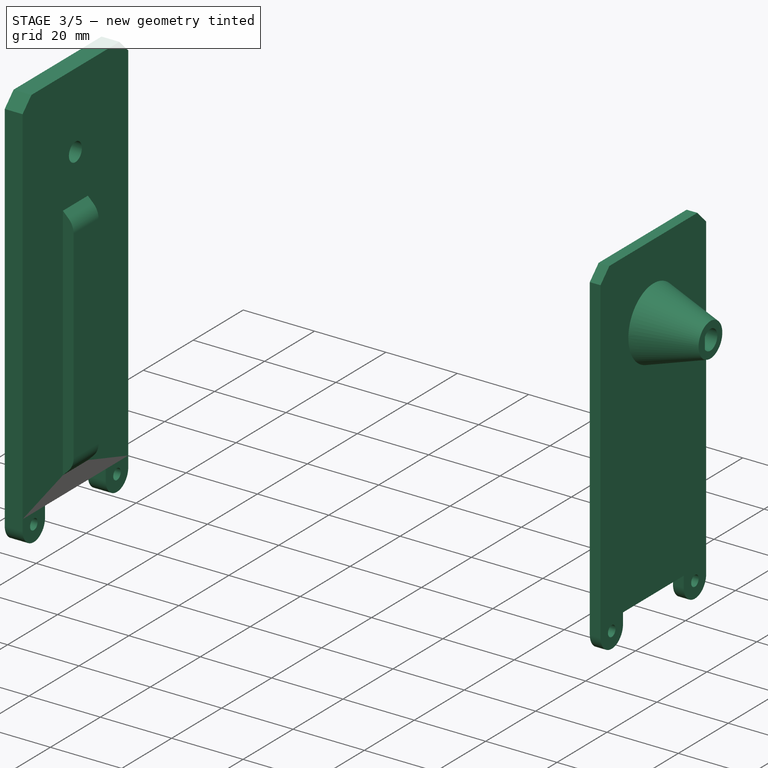
[diagram: stage 3 of 5 — iso view after this stage's code; geometry added in this stage tinted green]
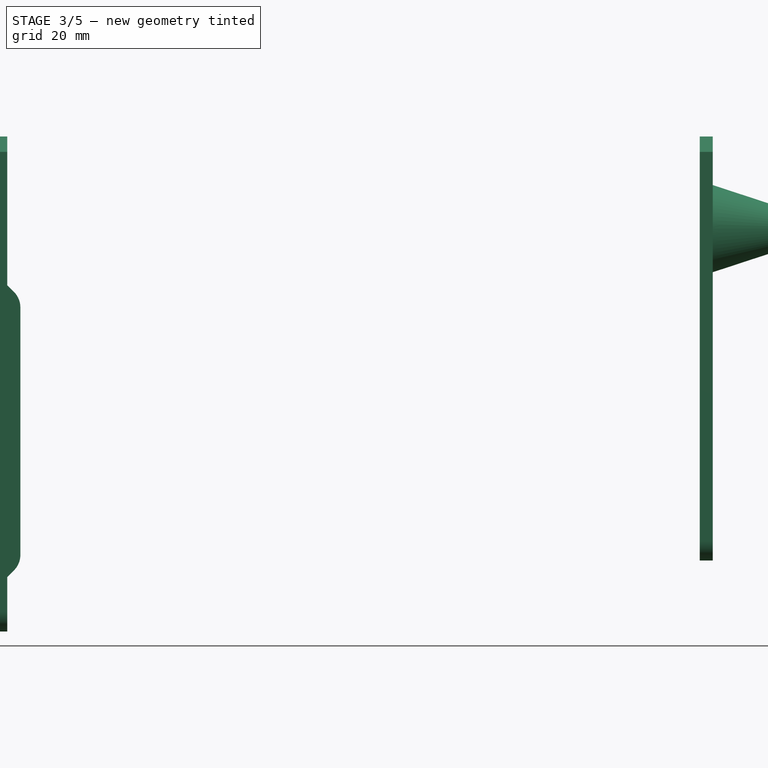
[diagram: stage 3 of 5 — front view after this stage's code; geometry added in this stage tinted green]
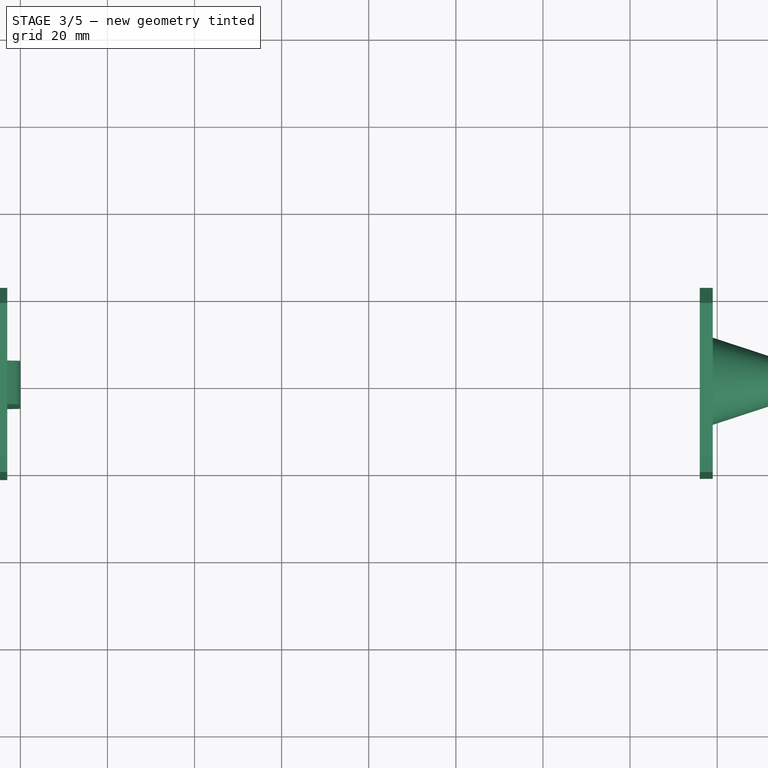
[diagram: stage 3 of 5 — top view after this stage's code; geometry added in this stage tinted green]
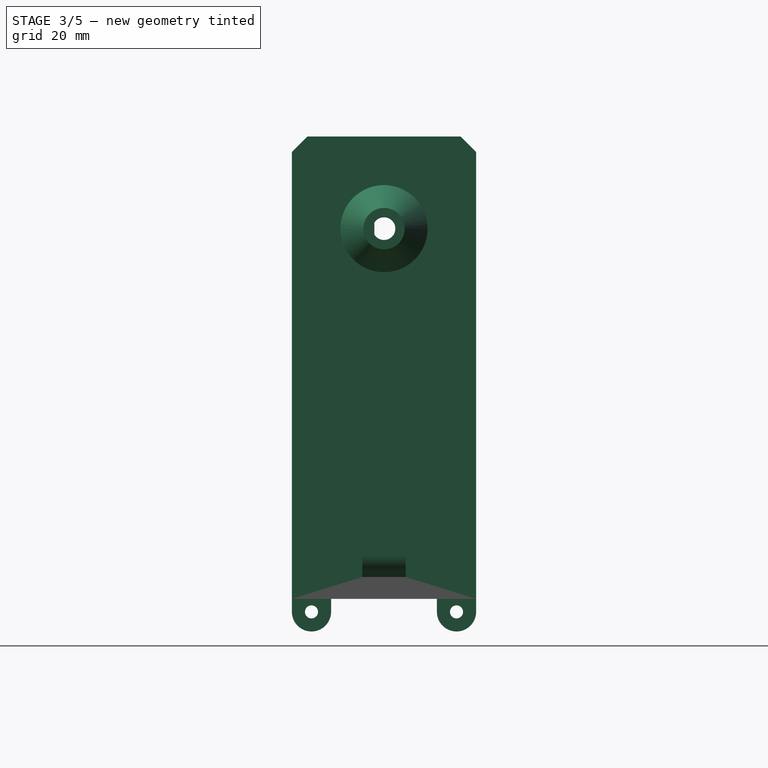
[diagram: stage 3 of 5 — right view after this stage's code; geometry added in this stage tinted green]
FEATURE [Sketcher::SketchObject] Sketch011
  ExternalGeometry = -> [Binder003]
  FullyConstrained = true
  MapMode = 5
  Placement = pos=(-45,0,0) rot=(0.57735,-0.57735,-0.57735;2.0944rad)
  Support = -> [Binder003]
  sketch-geometry (10):
    g0: LineSegment StartX=-12.15 StartY=-88 StartZ=0 EndX=-12.15 EndY=-85 EndZ=0
    g1: LineSegment StartX=-12.15 StartY=-85 StartZ=0 EndX=-21.15 EndY=-85 EndZ=0
    g2: LineSegment StartX=-21.15 StartY=-85 StartZ=0 EndX=-21.15 EndY=-88 EndZ=0
    g3: LineSegment StartX=21.15 StartY=-88 StartZ=0 EndX=21.15 EndY=-85 EndZ=0
    g4: LineSegment StartX=21.15 StartY=-85 StartZ=0 EndX=12.15 EndY=-85 EndZ=0
    g5: LineSegment StartX=12.15 StartY=-85 StartZ=0 EndX=12.15 EndY=-88 EndZ=0
    g6: ArcOfCircle CenterX=-16.65 CenterY=-88 CenterZ=0 NormalX=0 NormalY=0 NormalZ=1 AngleXU=0 Radius=4.5 StartAngle=3.14159 EndAngle=6.28319
    g7: ArcOfCircle CenterX=16.65 CenterY=-88 CenterZ=0 NormalX=0 NormalY=0 NormalZ=1 AngleXU=0 Radius=4.5 StartAngle=3.14159 EndAngle=6.28319
    g8: Circle CenterX=-16.65 CenterY=-88 CenterZ=0 NormalX=0 NormalY=0 NormalZ=1 AngleXU=0 Radius=1.5
    g9: Circle CenterX=16.65 CenterY=-88 CenterZ=0 NormalX=0 NormalY=0 NormalZ=1 AngleXU=0 Radius=1.5
  constraints (20):
    c: Coincident(g0,g-7)
    c: Coincident(g0,g-7)
    c: Coincident(g1,g0)
    c: Coincident(g1,g-8)
    c: Coincident(g2,g1)
    c: Coincident(g2,g-8)
    c: Coincident(g3,g-6)
    c: Coincident(g3,g-6)
    c: Coincident(g4,g3)
    c: Coincident(g4,g-5)
    c: Coincident(g5,g4)
    c: Coincident(g5,g-5)
    c: Coincident(g6,g0)
    c: Coincident(g7,g3)
    c: Tangent(g7,g5) = -1.5708
    c: Tangent(g6,g2) = -1.5708
    c: Coincident(g8,g6)
    c: Coincident(g9,g7)
    c: Equal(g-4,g8)
    c: Equal(g9,g8)
FEATURE [PartDesign::Pad] Pad009
  BaseFeature = -> Pad008
  Direction = (-1,0,0)
  Length = 5
  Length2 = 10
  Profile = -> Sketch011
  ReferenceAxis = -> Sketch011 [N_Axis]
  Type = 0
FEATURE [Sketcher::SketchObject] Sketch012
  ExternalGeometry = -> [Pad009,Binder003]
  FullyConstrained = true
  MapMode = 5
  Placement = pos=(0,0,-85) rot=(1,0,0;3.14159rad)
  Support = -> [Pad009]
  sketch-geometry (1):
    g0: LineSegment StartX=-134 StartY=-21.15 StartZ=0 EndX=-134 EndY=0 EndZ=0
  constraints (3):
    c: PointOnObject(g0,g-1)
    c: Symmetric(g-6,g-5,g0)
    c: Vertical(g0)
FEATURE [Sketcher::SketchObject] Sketch013
  ExternalGeometry = -> [Pad009,Binder003]
  FullyConstrained = true
  MapMode = 5
  Placement = pos=(0,-21.15,0) rot=(1,0,0;1.5708rad)
  Support = -> [Pad009]
  sketch-geometry (2):
    g0: LineSegment StartX=-134 StartY=-80 StartZ=0 EndX=-134 EndY=-82.5 EndZ=0
    g1: LineSegment StartX=-134 StartY=-82.5 StartZ=0 EndX=-134 EndY=-85 EndZ=0
  constraints (6):
    c: Coincident(g1,g0)
    c: PointOnObject(g1,g-8)
    c: Vertical(g1)
    c: Vertical(g0)
    c: Symmetric(g-7,g-7,g0)
    c: Equal(g0,g1)
FEATURE [PartDesign::Plane] DatumPlane
  Length = 65.3276
  MapMode = 13
  Placement = pos=(-134,-1.18e-14,-84.1667) rot=(0.57735,-0.57735,-0.57735;2.0944rad)
  ResizeMode = 0
  Support = -> [Sketch012,Sketch013]
  Width = 132.795
FEATURE [PartDesign::Mirrored] Mirrored
  BaseFeature = -> Pad009
  MirrorPlane = -> DatumPlane
  Originals = -> [Pad009]
FEATURE [Sketcher::SketchObject] Sketch014
  ExternalGeometry = -> [Mirrored]
  FullyConstrained = true
  MapMode = 5
  Placement = pos=(0,0,-85) rot=(1,0,0;3.14159rad)
  Support = -> [Mirrored]
  sketch-geometry (34):
    g0: Circle CenterX=-149.5 CenterY=15.5 CenterZ=0 NormalX=0 NormalY=0 NormalZ=1 AngleXU=0 Radius=2.75
    g1: Circle CenterX=-118.5 CenterY=15.5 CenterZ=0 NormalX=0 NormalY=0 NormalZ=1 AngleXU=0 Radius=2.75
    g2: Circle CenterX=-149.5 CenterY=-15.5 CenterZ=0 NormalX=0 NormalY=0 NormalZ=1 AngleXU=0 Radius=2.75
    g3: Circle CenterX=-118.5 CenterY=-15.5 CenterZ=0 NormalX=0 NormalY=0 NormalZ=1 AngleXU=0 Radius=2.75
    g4: LineSegment StartX=-149.5 StartY=15.5 StartZ=0 EndX=-118.5 EndY=15.5 EndZ=0
    g5: LineSegment StartX=-118.5 StartY=15.5 StartZ=0 EndX=-118.5 EndY=-15.5 EndZ=0
    g6: LineSegment StartX=-118.5 StartY=-15.5 StartZ=0 EndX=-149.5 EndY=-15.5 EndZ=0
    g7: LineSegment StartX=-149.5 StartY=-15.5 StartZ=0 EndX=-149.5 EndY=15.5 EndZ=0
    g8: LineSegment StartX=-134 StartY=15.5 StartZ=0 EndX=-134 EndY=21.15 EndZ=0
    g9: ArcOfCircle CenterX=-169.5 CenterY=15.5 CenterZ=0 NormalX=0 NormalY=0 NormalZ=1 AngleXU=0 Radius=2.75 StartAngle=4.71239 EndAngle=7.85398
    g10: ArcOfCircle CenterX=-203 CenterY=15.5 CenterZ=0 NormalX=0 NormalY=0 NormalZ=1 AngleXU=0 Radius=2.75 StartAngle=1.5708 EndAngle=4.71239
    g11: LineSegment StartX=-169.5 StartY=18.25 StartZ=0 EndX=-203 EndY=18.25 EndZ=0
    g12: LineSegment StartX=-203 StartY=12.75 StartZ=0 EndX=-169.5 EndY=12.75 EndZ=0
    g13: ArcOfCircle CenterX=-203 CenterY=-15.5 CenterZ=0 NormalX=0 NormalY=0 NormalZ=1 AngleXU=0 Radius=2.75 StartAngle=1.5708 EndAngle=4.71239
    g14: ArcOfCircle CenterX=-169.5 CenterY=-15.5 CenterZ=0 NormalX=0 NormalY=0 NormalZ=1 AngleXU=0 Radius=2.75 StartAngle=4.71239 EndAngle=7.85398
    g15: LineSegment StartX=-203 StartY=-18.25 StartZ=0 EndX=-169.5 EndY=-18.25 EndZ=0
    g16: LineSegment StartX=-169.5 StartY=-12.75 StartZ=0 EndX=-203 EndY=-12.75 EndZ=0
    g17: ArcOfCircle CenterX=-98.5 CenterY=-15.5 CenterZ=0 NormalX=0 NormalY=0 NormalZ=1 AngleXU=0 Radius=2.75 StartAngle=1.5708 EndAngle=4.71239
    g18: ArcOfCircle CenterX=-65 CenterY=-15.5 CenterZ=0 NormalX=0 NormalY=0 NormalZ=1 AngleXU=0 Radius=2.75 StartAngle=4.71239 EndAngle=7.85398
    g19: LineSegment StartX=-98.5 StartY=-18.25 StartZ=0 EndX=-65 EndY=-18.25 EndZ=0
    g20: LineSegment StartX=-65 StartY=-12.75 StartZ=0 EndX=-98.5 EndY=-12.75 EndZ=0
    g21: ArcOfCircle CenterX=-98.5 CenterY=15.5 CenterZ=0 NormalX=0 NormalY=0 NormalZ=1 AngleXU=0 Radius=2.75 StartAngle=1.5708 EndAngle=4.71239
    g22: ArcOfCircle CenterX=-65 CenterY=15.5 CenterZ=0 NormalX=0 NormalY=0 NormalZ=1 AngleXU=0 Radius=2.75 StartAngle=4.71239 EndAngle=7.85398
    g23: LineSegment StartX=-98.5 StartY=12.75 StartZ=0 EndX=-65 EndY=12.75 EndZ=0
    g24: LineSegment StartX=-65 StartY=18.25 StartZ=0 EndX=-98.5 EndY=18.25 EndZ=0
    g25: LineSegment StartX=-169.5 StartY=15.5 StartZ=0 EndX=-149.5 EndY=15.5 EndZ=0
    g26: LineSegment StartX=-118.5 StartY=15.5 StartZ=0 EndX=-98.5 EndY=15.5 EndZ=0
    g27: LineSegment StartX=-98.5 StartY=15.5 StartZ=0 EndX=-98.5 EndY=-15.5 EndZ=0
    g28: LineSegment StartX=-65 StartY=15.5 StartZ=0 EndX=-65 EndY=-15.5 EndZ=0
    g29: LineSegment StartX=-169.5 StartY=15.5 StartZ=0 EndX=-169.5 EndY=-15.5 EndZ=0
    g30: LineSegment StartX=-203 StartY=15.5 StartZ=0 EndX=-203 EndY=-15.5 EndZ=0
    g31: LineSegment StartX=-118.5 StartY=-15.5 StartZ=0 EndX=-98.5 EndY=-15.5 EndZ=0
    g32: LineSegment StartX=-65 StartY=15.5 StartZ=0 EndX=-45 EndY=15.5 EndZ=0
    g33: LineSegment StartX=-203 StartY=15.5 StartZ=0 EndX=-223 EndY=15.5 EndZ=0
  constraints (81):
    c: Equal(g1,g3)
    c: Equal(g3,g2)
    c: Equal(g2,g0)
    c: Diameter(g1) = 5.5
    c: Coincident(g4,g5)
    c: Coincident(g5,g6)
    c: Coincident(g6,g7)
    c: Coincident(g7,g4)
    c: Horizontal(g4)
    c: Horizontal(g6)
    c: Vertical(g5)
    c: Coincident(g4,g0)
    c: Coincident(g5,g3)
    c: Coincident(g1,g4)
    c: Coincident(g2,g6)
    c: Equal(g6,g7)
    c: Distance(g0,g1) = 31
    c: Symmetric(g0,g2,g-1)
    c: Symmetric(g0,g1,g8)
    c: Symmetric(g-4,g-4,g8)
    c: Vertical(g8)
    c: Tangent(g9,g11) = -1.5708
    c: Tangent(g11,g10) = -1.5708
    c: Tangent(g10,g12) = -1.5708
    c: Tangent(g12,g9) = -1.5708
    c: Equal(g9,g10)
    c: Horizontal(g11)
    c: Tangent(g13,g15) = -1.5708
    c: Tangent(g15,g14) = -1.5708
    c: Tangent(g14,g16) = -1.5708
    c: Tangent(g16,g13) = -1.5708
    c: Equal(g13,g14)
    c: Horizontal(g15)
    c: Tangent(g17,g19) = -1.5708
    c: Tangent(g19,g18) = -1.5708
    c: Tangent(g18,g20) = -1.5708
    c: Tangent(g20,g17) = -1.5708
    c: Equal(g17,g18)
    c: Tangent(g21,g23) = -1.5708
    c: Tangent(g23,g22) = -1.5708
    c: Tangent(g22,g24) = -1.5708
    c: Tangent(g24,g21) = -1.5708
    c: Equal(g21,g22)
    c: Horizontal(g23)
    c: Equal(g22,g18)
    c: Equal(g18,g14)
    c: Equal(g14,g9)
    c: Equal(g9,g0)
    c: Coincident(g25,g9)
    c: Coincident(g25,g0)
    c: Coincident(g26,g1)
    c: Coincident(g26,g21)
    c: Coincident(g27,g21)
    c: Coincident(g27,g17)
    c: Coincident(g28,g22)
    c: Coincident(g28,g18)
    c: Coincident(g29,g9)
    c: Coincident(g29,g14)
    c: Coincident(g30,g10)
    c: Coincident(g30,g13)
    c: Vertical(g30)
    c: Vertical(g29)
    c: Vertical(g27)
    c: Vertical(g28)
    c: Horizontal(g26)
    c: Horizontal(g25)
    c: Equal(g28,g27)
    c: Equal(g27,g29)
    c: Coincident(g31,g3)
    c: Coincident(g31,g17)
    c: Horizontal(g31)
    c: Coincident(g32,g22)
    c: PointOnObject(g32,g-5)
    c: Horizontal(g32)
    c: Coincident(g33,g10)
    c: PointOnObject(g33,g-6)
    c: Horizontal(g33)
    c: Equal(g33,g25)
    c: Equal(g25,g26)
    c: Equal(g26,g32)
    c: Distance(g1,g21) = 20
FEATURE [PartDesign::Pocket] Pocket
  BaseFeature = -> Mirrored
  Direction = (0,0,1)
  Length = 5
  Length2 = 5
  Profile = -> Sketch014
  ReferenceAxis = -> Sketch014 [N_Axis]
  Type = 0
FEATURE [PartDesign::Body] Body002  label="Static-Bridge"
  Group = -> [Binder003,Binder004,Sketch010,Pad008,Sketch011,Pad009,Sketch012,Sketch013,DatumPlane,Mirrored,Sketch014,Pocket]
  Origin = -> Origin002
  Tip = -> Pocket
FEATURE [PartDesign::SubShapeBinder] Binder005
  BindCopyOnChange = 0
  BindMode = 0
  ClaimChildren = false
  Context = -> Body003 [Binder005.]
  Fuse = false
  MakeFace = true
  OffsetFill = false
  OffsetIntersection = false
  OffsetJoinType = 0
  OffsetOpenResult = false
  PartialLoad = false
  Relative = true
  Support = -> [Body002[Pocket.Face3]]
  _Version = 2
FEATURE [PartDesign::SubShapeBinder] Binder006
  BindCopyOnChange = 0
  BindMode = 0
  ClaimChildren = false
  Context = -> Body003 [Binder006.]
  Fuse = false
  MakeFace = true
  OffsetFill = false
  OffsetIntersection = false
  OffsetJoinType = 0
  OffsetOpenResult = false
  PartialLoad = false
  Relative = true
  Support = -> [Body001[Pad007.Face23]]
  _Version = 2
FEATURE [Sketcher::SketchObject] Sketch015
  ExternalGeometry = -> [Binder006]
  FullyConstrained = true
  MapMode = 5
  Placement = pos=(-223,0,0) rot=(0.57735,-0.57735,-0.57735;2.0944rad)
  Support = -> [Binder005]
  sketch-geometry (15):
    g0: Circle CenterX=16.65 CenterY=-88 CenterZ=0 NormalX=0 NormalY=0 NormalZ=1 AngleXU=0 Radius=1.5
    g1: Circle CenterX=-16.65 CenterY=-88 CenterZ=0 NormalX=0 NormalY=0 NormalZ=1 AngleXU=0 Radius=1.5
    g2: LineSegment StartX=-21.15 StartY=-85 StartZ=0 EndX=-21.15 EndY=-88 EndZ=0
    g3: LineSegment StartX=-12.15 StartY=-88 StartZ=0 EndX=-12.15 EndY=-85 EndZ=0
    g4: LineSegment StartX=-12.15 StartY=-85 StartZ=0 EndX=12.15 EndY=-85 EndZ=0
    g5: LineSegment StartX=12.15 StartY=-85 StartZ=0 EndX=12.15 EndY=-88 EndZ=0
    g6: LineSegment StartX=21.15 StartY=-88 StartZ=0 EndX=21.15 EndY=-85 EndZ=0
    g7: LineSegment StartX=-21.15 StartY=17.6145 StartZ=0 EndX=-17.6145 EndY=21.15 EndZ=0
    g8: LineSegment StartX=-17.6145 StartY=21.15 StartZ=0 EndX=17.6145 EndY=21.15 EndZ=0
    g9: LineSegment StartX=17.6145 StartY=21.15 StartZ=0 EndX=21.15 EndY=17.6145 EndZ=0
    g10: LineSegment StartX=21.15 StartY=-85 StartZ=0 EndX=21.15 EndY=17.6145 EndZ=0
    g11: LineSegment StartX=-21.15 StartY=17.6145 StartZ=0 EndX=-21.15 EndY=-85 EndZ=0
    g12: ArcOfCircle CenterX=-16.65 CenterY=-88 CenterZ=0 NormalX=0 NormalY=0 NormalZ=1 AngleXU=0 Radius=4.5 StartAngle=3.14159 EndAngle=6.28319
    g13: ArcOfCircle CenterX=16.65 CenterY=-88 CenterZ=0 NormalX=0 NormalY=0 NormalZ=1 AngleXU=0 Radius=4.5 StartAngle=3.14159 EndAngle=6.28319
    g14: Circle CenterX=0 CenterY=0 CenterZ=0 NormalX=0 NormalY=0 NormalZ=1 AngleXU=0 Radius=2.6
  constraints (30):
    c: Coincident(g1,g-6)
    c: Coincident(g2,g-5)
    c: Coincident(g2,g-5)
    c: Coincident(g3,g-4)
    c: Coincident(g3,g-4)
    c: Coincident(g4,g3)
    c: Coincident(g4,g-8)
    c: Coincident(g5,g4)
    c: Coincident(g5,g-8)
    c: Coincident(g6,g-7)
    c: Coincident(g6,g-7)
    c: Coincident(g7,g-10)
    c: Coincident(g7,g-10)
    c: Coincident(g8,g7)
    c: Coincident(g8,g-11)
    c: Coincident(g9,g8)
    c: Coincident(g9,g-11)
    c: Coincident(g10,g6)
    c: Coincident(g10,g9)
    c: Coincident(g11,g7)
    c: Coincident(g11,g2)
    c: Coincident(g12,g2)
    c: Coincident(g13,g6)
    c: Tangent(g13,g5) = -1.5708
    c: Coincident(g14,g-1)
    c: Diameter(g14) = 5.2
    c: Coincident(g13,g0)
    c: Equal(g1,g-6)
    c: Equal(g-6,g0)
    c: Tangent(g12,g3) = -1.5708
FEATURE [PartDesign::Pad] Pad010
  Direction = (-1,0,0)
  Length = 5
  Length2 = 10
  Profile = -> Sketch015
  ReferenceAxis = -> Sketch015 [N_Axis]
  Type = 0
FEATURE [PartDesign::SubShapeBinder] Binder007
  BindCopyOnChange = 0
  BindMode = 0
  ClaimChildren = false
  Context = -> Body004 [Binder007.]
  Fuse = false
  MakeFace = true
  OffsetFill = false
  OffsetIntersection = false
  OffsetJoinType = 0
  OffsetOpenResult = false
  PartialLoad = false
  Relative = true
  Support = -> [Body[Pad006.Face82]]
  _Version = 2
FEATURE [PartDesign::SubShapeBinder] Binder008
  BindCopyOnChange = 0
  BindMode = 0
  ClaimChildren = false
  Context = -> Body004 [Binder008.]
  Fuse = false
  MakeFace = true
  OffsetFill = false
  OffsetIntersection = false
  OffsetJoinType = 0
  OffsetOpenResult = false
  PartialLoad = false
  Relative = true
  Support = -> [Body[Pad006.Edge191]]
  _Version = 2
FEATURE [PartDesign::SubShapeBinder] Binder009
  BindCopyOnChange = 0
  BindMode = 0
  ClaimChildren = false
  Context = -> Body004 [Binder009.]
  Fuse = false
  MakeFace = true
  OffsetFill = false
  OffsetIntersection = false
  OffsetJoinType = 0
  OffsetOpenResult = false
  PartialLoad = false
  Relative = true
  Support = -> [Body001[Pad007.Face23]]
  _Version = 2
FEATURE [Sketcher::SketchObject] Sketch016
  ExternalGeometry = -> [Binder007,Binder009]
  FullyConstrained = true
  MapMode = 5
  Placement = pos=(-64,0,0) rot=(0.57735,-0.57735,-0.57735;2.0944rad)
  Support = -> [Binder007]
  sketch-geometry (21):
    g0: ArcOfCircle CenterX=0 CenterY=0 CenterZ=0 NormalX=0 NormalY=0 NormalZ=1 AngleXU=0 Radius=2.75 StartAngle=0.643501 EndAngle=5.63968
    g1: LineSegment StartX=2.2 StartY=1.65 StartZ=0 EndX=2.2 EndY=-1.65 EndZ=0
    g2: LineSegment StartX=0 StartY=0 StartZ=0 EndX=2.2 EndY=1.65 EndZ=0
    g3: LineSegment StartX=-21.15 StartY=17.6145 StartZ=0 EndX=-17.6145 EndY=21.15 EndZ=0
    g4: LineSegment StartX=-17.6145 StartY=21.15 StartZ=0 EndX=17.6145 EndY=21.15 EndZ=0
    g5: LineSegment StartX=17.6145 StartY=21.15 StartZ=0 EndX=21.15 EndY=17.6145 EndZ=0
    g6: LineSegment StartX=-21.15 StartY=17.6145 StartZ=0 EndX=-21.15 EndY=-68.7022 EndZ=0
    g7: LineSegment StartX=21.15 StartY=-68.7022 StartZ=0 EndX=21.15 EndY=17.6145 EndZ=0
    g8: LineSegment StartX=0 StartY=0 StartZ=0 EndX=16.65 EndY=-76.2022 EndZ=0
    g9: LineSegment StartX=0 StartY=-85 StartZ=0 EndX=0 EndY=-78 EndZ=0
    g10: LineSegment StartX=0 StartY=-78 StartZ=0 EndX=0 EndY=0 EndZ=0
    g11: Circle CenterX=16.65 CenterY=-71.7022 CenterZ=0 NormalX=0 NormalY=0 NormalZ=1 AngleXU=0 Radius=1.5
    g12: Circle CenterX=-16.65 CenterY=-71.7022 CenterZ=0 NormalX=0 NormalY=0 NormalZ=1 AngleXU=0 Radius=1.5
    g13: LineSegment StartX=21.15 StartY=-68.7022 StartZ=0 EndX=21.15 EndY=-71.7022 EndZ=0
    g14: LineSegment StartX=12.15 StartY=-71.7022 StartZ=0 EndX=12.15 EndY=-68.7022 EndZ=0
    g15: LineSegment StartX=12.15 StartY=-68.7022 StartZ=0 EndX=-12.15 EndY=-68.7022 EndZ=0
    g16: LineSegment StartX=-12.15 StartY=-68.7022 StartZ=0 EndX=-12.15 EndY=-71.7022 EndZ=0
    g17: LineSegment StartX=-21.15 StartY=-68.7022 StartZ=0 EndX=-21.15 EndY=-71.7022 EndZ=0
    g18: ArcOfCircle CenterX=-16.65 CenterY=-71.7022 CenterZ=0 NormalX=0 NormalY=0 NormalZ=1 AngleXU=0 Radius=4.5 StartAngle=3.14159 EndAngle=6.28319
    g19: ArcOfCircle CenterX=16.65 CenterY=-71.7022 CenterZ=0 NormalX=0 NormalY=0 NormalZ=1 AngleXU=0 Radius=4.5 StartAngle=3.14159 EndAngle=6.28319
    g20: LineSegment StartX=16.65 StartY=-71.7022 StartZ=0 EndX=16.65 EndY=-76.2022 EndZ=0
  constraints (53):
    c: Coincident(g0,g-3)
    c: Coincident(g1,g0)
    c: Coincident(g1,g0)
    c: Vertical(g1)
    c: Coincident(g2,g0)
    c: Coincident(g2,g0)
    c: PointOnObject(g-3,g2)
    c: Distance(g-3,g0) = 0.25
    c: Coincident(g3,g-4)
    c: Coincident(g3,g-4)
    c: Coincident(g4,g3)
    c: Coincident(g4,g-5)
    c: Coincident(g5,g4)
    c: Coincident(g5,g-5)
    c: Coincident(g6,g3)
    c: Vertical(g6)
    c: Coincident(g7,g5)
    c: Vertical(g7)
    c: Coincident(g8,g0)
    c: PointOnObject(g9,g-6)
    c: PointOnObject(g9,g-2)
    c: Vertical(g9)
    c: Coincident(g10,g9)
    c: Coincident(g10,g0)
    c: Equal(g10,g8)
    c: Distance(g9) = 7
    c: Equal(g11,g12)
    c: Equal(g12,g-7)
    c: Coincident(g13,g7)
    c: Vertical(g13)
    c: Coincident(g15,g14)
    c: Horizontal(g15)
    c: Coincident(g16,g15)
    c: Vertical(g16)
    c: Coincident(g17,g6)
    c: Equal(g17,g16)
    c: Equal(g16,g14)
    c: Equal(g14,g13)
    c: Equal(g13,g-9)
    c: Vertical(g14)
    c: Vertical(g17)
    c: Tangent(g19,g14) = 1.5708
    c: Tangent(g18,g16) = 1.5708
    c: Tangent(g19,g13) = 1.5708
    c: Coincident(g11,g19)
    c: Coincident(g18,g12)
    c: Tangent(g18,g17) = -1.5708
    c: Equal(g19,g18)
    c: Equal(g-6,g15)
    c: Coincident(g20,g11)
    c: PointOnObject(g20,g19)
    c: Vertical(g20)
    c: Coincident(g8,g20)
FEATURE [PartDesign::Pad] Pad011
  Direction = (-1,0,0)
  Length = 3
  Length2 = 10
  Profile = -> Sketch016
  ReferenceAxis = -> Sketch016 [N_Axis]
  Reversed = true
  Type = 0
FEATURE [Sketcher::SketchObject] Sketch017
  ExternalGeometry = -> [Pad011]
  FullyConstrained = true
  MapMode = 5
  Placement = pos=(-61,0,0) rot=(0.57735,0.57735,0.57735;2.0944rad)
  Support = -> [Pad011]
  sketch-geometry (3):
    g0: ArcOfCircle CenterX=-1.7e-15 CenterY=2.8e-15 CenterZ=0 NormalX=0 NormalY=0 NormalZ=1 AngleXU=0 Radius=2.75 StartAngle=3.78509 EndAngle=8.78128
    g1: LineSegment StartX=-2.2 StartY=1.65 StartZ=0 EndX=-2.2 EndY=-1.65 EndZ=0
    g2: Circle CenterX=-1.7e-15 CenterY=2.8e-15 CenterZ=0 NormalX=0 NormalY=0 NormalZ=1 AngleXU=0 Radius=10
  constraints (7):
    c: Coincident(g0,g-3)
    c: Coincident(g0,g-3)
    c: Coincident(g1,g0)
    c: Coincident(g2,g0)
    c: Diameter(g2) = 20
    c: Coincident(g1,g0)
    c: Equal(g0,g-3)
FEATURE [PartDesign::SubShapeBinder] Binder010
  BindCopyOnChange = 0
  BindMode = 0
  ClaimChildren = false
  Context = -> Body004 [Binder010.]
  Fuse = false
  MakeFace = true
  OffsetFill = false
  OffsetIntersection = false
  OffsetJoinType = 0
  OffsetOpenResult = false
  PartialLoad = false
  Relative = true
  Support = -> [Body[Pad003.Face33],Sketch017]
  _Version = 2
FEATURE [Sketcher::SketchObject] Sketch018
  ExternalGeometry = -> [Binder010]
  FullyConstrained = true
  MapMode = 5
  Placement = pos=(-45,0,0) rot=(0.57735,-0.57735,-0.57735;2.0944rad)
  Support = -> [Binder010]
  sketch-geometry (4):
    g0: ArcOfCircle CenterX=-1e-16 CenterY=2e-16 CenterZ=0 NormalX=0 NormalY=0 NormalZ=1 AngleXU=0 Radius=2.75 StartAngle=0.643501 EndAngle=5.63968
    g1: LineSegment StartX=2.2 StartY=-1.65 StartZ=0 EndX=2.2 EndY=1.65 EndZ=0
    g2: Circle CenterX=-1e-16 CenterY=2e-16 CenterZ=0 NormalX=0 NormalY=0 NormalZ=1 AngleXU=0 Radius=4.75
    g3: LineSegment StartX=-2.75 StartY=0 StartZ=0 EndX=-4.75 EndY=0 EndZ=0
  constraints (11):
    c: Coincident(g0,g-3)
    c: Coincident(g0,g-3)
    c: Equal(g0,g-3)
    c: Coincident(g1,g0)
    c: Coincident(g1,g0)
    c: Coincident(g2,g0)
    c: PointOnObject(g3,g0)
    c: PointOnObject(g3,g2)
    c: Horizontal(g3)
    c: Distance(g3) = 2
    c: PointOnObject(g3,g-1)
FEATURE [PartDesign::AdditiveLoft] AdditiveLoft
  BaseFeature = -> Pad011
  Closed = false
  Profile = -> Sketch017
  Ruled = false
  Sections = -> [Sketch018]
FEATURE [PartDesign::Body] Body005  label="Rot-Handle-2"
  Group = -> [Binder011,Binder012,Sketch026,Sketch027,AdditiveLoft002,Sketch028,Pad013,Binder016,Sketch040,Pocket007]
  Origin = -> Origin005
  Tip = -> Pocket007
FEATURE [Sketcher::SketchObject] Sketch041
  ExternalGeometry = -> [Pad010]
  FullyConstrained = true
  MapMode = 5
  Placement = pos=(0,0,-85) rot=(1,0,0;3.14159rad)
  Support = -> [Pad010]
  sketch-geometry (1):
    g0: LineSegment StartX=-228 StartY=0 StartZ=0 EndX=-223 EndY=0 EndZ=0
  constraints (4):
    c: PointOnObject(g0,g-3)
    c: Horizontal(g0)
    c: PointOnObject(g0,g-1)
    c: PointOnObject(g0,g-4)
FEATURE [Sketcher::SketchObject] Sketch042
  ExternalGeometry = -> [Pad010]
  FullyConstrained = true
  MapMode = 5
  Placement = pos=(-223,0,0) rot=(0.57735,0.57735,0.57735;2.0944rad)
  Support = -> [Pad010]
  sketch-geometry (2):
    g0: LineSegment StartX=0 StartY=21.15 StartZ=0 EndX=0 EndY=-31.925 EndZ=0
    g1: LineSegment StartX=0 StartY=-31.925 StartZ=0 EndX=0 EndY=-85 EndZ=0
  constraints (7):
    c: PointOnObject(g0,g-3)
    c: PointOnObject(g0,g-2)
    c: Vertical(g0)
    c: Coincident(g1,g0)
    c: PointOnObject(g1,g-4)
    c: Vertical(g1)
    c: Equal(g1,g0)
FEATURE [PartDesign::Plane] DatumPlane002
  Length = 287.479
  MapMode = 13
  Placement = pos=(-224.667,0,-49.6167) rot=(1,0,0;1.5708rad)
  ResizeMode = 0
  Support = -> [Sketch041,Sketch042]
  Width = 151.946
FEATURE [Sketcher::SketchObject] Sketch043
  ExternalGeometry = -> [Pad010]
  FullyConstrained = true
  MapMode = 5
  Placement = pos=(-224.667,0,-49.6167) rot=(1,0,0;1.5708rad)
  Support = -> [DatumPlane002]
  sketch-geometry (9):
    g0: LineSegment StartX=1.66667 StartY=-35.3833 StartZ=0 EndX=1.66667 EndY=-30.3833 EndZ=0
    g1: LineSegment StartX=1.66667 StartY=36.6167 StartZ=0 EndX=1.66667 EndY=33.6167 EndZ=0
    g2: LineSegment StartX=1.66667 StartY=33.6167 StartZ=0 EndX=4.66667 EndY=33.6167 EndZ=0
    g3: LineSegment StartX=1.66667 StartY=-30.3833 StartZ=0 EndX=1.66667 EndY=-27.3833 EndZ=0
    g4: LineSegment StartX=1.66667 StartY=-27.3833 StartZ=0 EndX=4.66667 EndY=-27.3833 EndZ=0
    g5: LineSegment StartX=1.66667 StartY=36.6167 StartZ=0 EndX=4.66667 EndY=33.6167 EndZ=0
    g6: LineSegment StartX=4.66667 StartY=33.6167 StartZ=0 EndX=4.66667 EndY=-27.3833 EndZ=0
    g7: LineSegment StartX=4.66667 StartY=-27.3833 StartZ=0 EndX=1.66667 EndY=-30.3833 EndZ=0
    g8: LineSegment StartX=1.66667 StartY=-30.3833 StartZ=0 EndX=1.66667 EndY=36.6167 EndZ=0
  constraints (24):
    c: Coincident(g0,g-3)
    c: PointOnObject(g0,g-3)
    c: Distance(g0,g0) = 5
    c: Coincident(g2,g1)
    c: Horizontal(g2)
    c: Coincident(g3,g0)
    c: Coincident(g4,g3)
    c: Equal(g4,g3)
    c: Equal(g3,g1)
    c: Equal(g1,g2)
    c: Coincident(g5,g2)
    c: Coincident(g6,g5)
    c: Coincident(g6,g4)
    c: Vertical(g6)
    c: Coincident(g7,g6)
    c: Coincident(g7,g0)
    c: Coincident(g8,g7)
    c: PointOnObject(g3,g8)
    c: PointOnObject(g1,g8)
    c: Distance(g2) = 3
    c: Coincident(g5,g1)
    c: Coincident(g5,g8)
    c: Horizontal(g4)
    c: Distance(g5,g7) = 67
FEATURE [PartDesign::Pad] Pad017
  BaseFeature = -> Pad010
  Direction = (0,-1,2e-16)
  Length = 10
  Length2 = 10
  Midplane = true
  Profile = -> Sketch043
  ReferenceAxis = -> Sketch043 [N_Axis]
  Type = 0
FEATURE [PartDesign::Fillet] Fillet003
  Base = -> Pad017 [Edge48,Edge53]
  BaseFeature = -> Pad017
  Radius = 5
  SupportTransform = false
  UseAllEdges = false
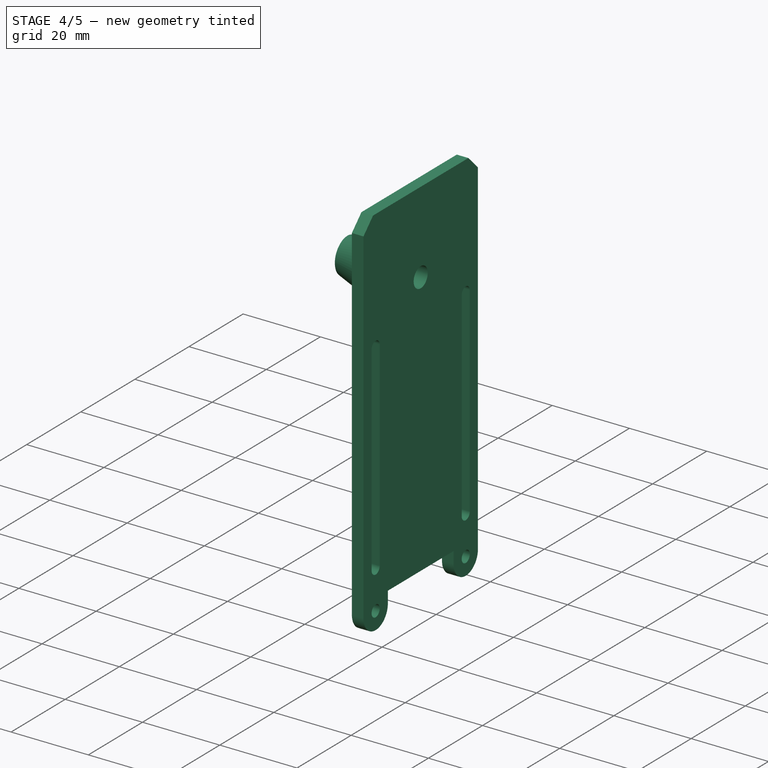
[diagram: stage 4 of 5 — iso view after this stage's code; geometry added in this stage tinted green]
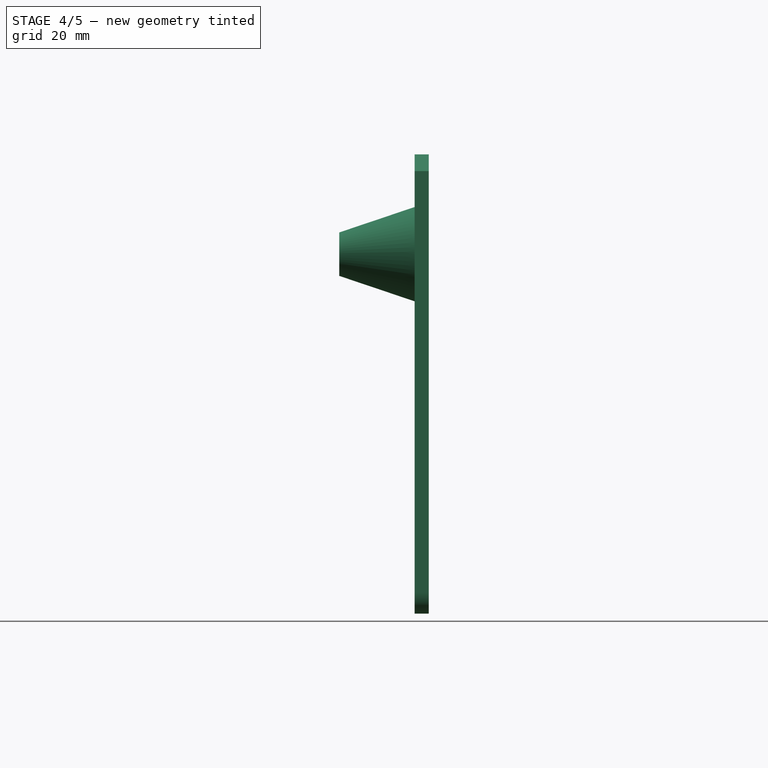
[diagram: stage 4 of 5 — front view after this stage's code; geometry added in this stage tinted green]
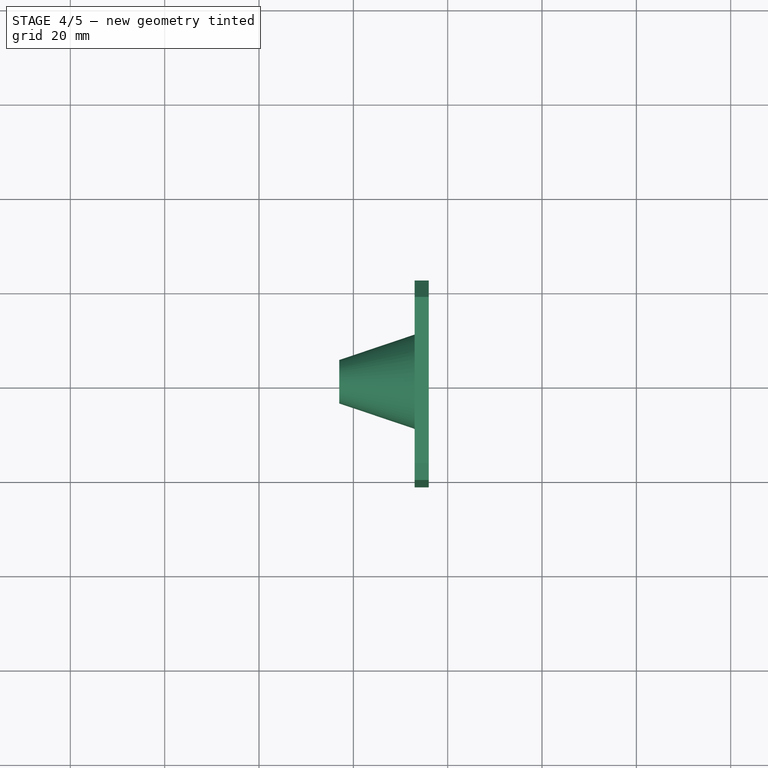
[diagram: stage 4 of 5 — top view after this stage's code; geometry added in this stage tinted green]
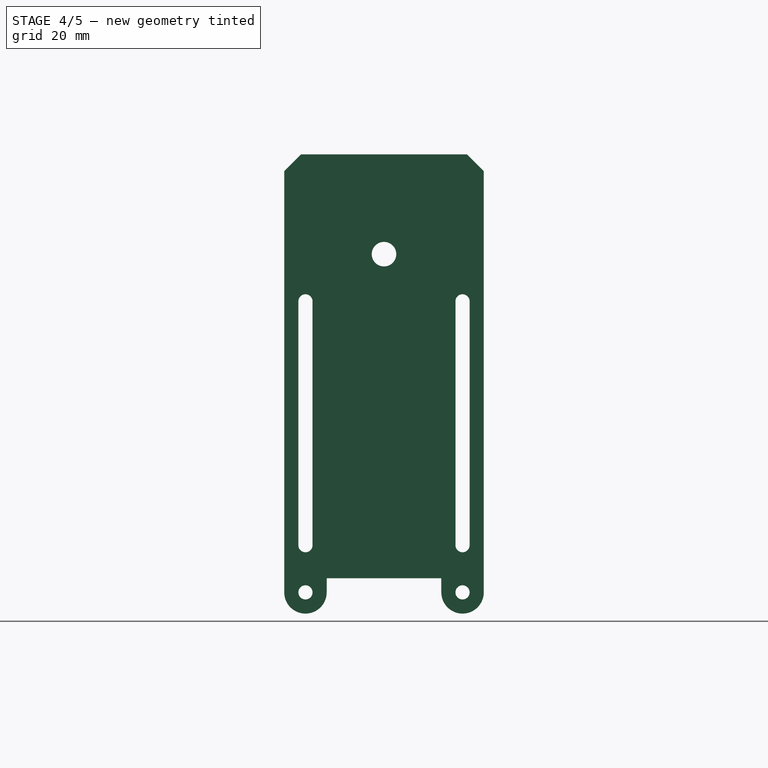
[diagram: stage 4 of 5 — right view after this stage's code; geometry added in this stage tinted green]
FEATURE [Sketcher::SketchObject] Sketch019
  ExternalGeometry = -> [Pad011]
  FullyConstrained = true
  MapMode = 5
  Placement = pos=(-61,0,0) rot=(0.57735,0.57735,0.57735;2.0944rad)
  Support = -> [Pad011]
  sketch-geometry (4):
    g0: LineSegment StartX=-12.2 StartY=5 StartZ=0 EndX=-2.2 EndY=5 EndZ=0
    g1: LineSegment StartX=-2.2 StartY=5 StartZ=0 EndX=-2.2 EndY=-5 EndZ=0
    g2: LineSegment StartX=-2.2 StartY=-5 StartZ=0 EndX=-12.2 EndY=-5 EndZ=0
    g3: LineSegment StartX=-12.2 StartY=-5 StartZ=0 EndX=-12.2 EndY=5 EndZ=0
  constraints (11):
    c: Coincident(g0,g1)
    c: Coincident(g1,g2)
    c: Coincident(g2,g3)
    c: Coincident(g3,g0)
    c: Horizontal(g0)
    c: Horizontal(g2)
    c: Vertical(g1)
    c: Equal(g0,g3)
    c: Distance(g0) = 10
    c: Symmetric(g2,g0,g-1)
    c: PointOnObject(g-3,g1)
FEATURE [Sketcher::SketchObject] Sketch020
  ExternalGeometry = -> [AdditiveLoft,Sketch019]
  FullyConstrained = true
  MapMode = 5
  Placement = pos=(-45,0,0) rot=(0.57735,0.57735,0.57735;2.0944rad)
  Support = -> [AdditiveLoft]
  sketch-geometry (4):
    g0: LineSegment StartX=-12.2 StartY=5 StartZ=0 EndX=-2.2 EndY=5 EndZ=0
    g1: LineSegment StartX=-2.2 StartY=5 StartZ=0 EndX=-2.2 EndY=-5 EndZ=0
    g2: LineSegment StartX=-2.2 StartY=-5 StartZ=0 EndX=-12.2 EndY=-5 EndZ=0
    g3: LineSegment StartX=-12.2 StartY=-5 StartZ=0 EndX=-12.2 EndY=5 EndZ=0
  constraints (11):
    c: Coincident(g0,g1)
    c: Coincident(g1,g2)
    c: Coincident(g2,g3)
    c: Coincident(g3,g0)
    c: Horizontal(g0)
    c: Horizontal(g2)
    c: Vertical(g1)
    c: Vertical(g3)
    c: Coincident(g0,g-4)
    c: PointOnObject(g-3,g1)
    c: Equal(g1,g0)
FEATURE [PartDesign::AdditiveLoft] AdditiveLoft001
  BaseFeature = -> AdditiveLoft
  Closed = false
  Profile = -> Sketch019
  Ruled = false
  Sections = -> [Sketch020]
FEATURE [Sketcher::SketchObject] Sketch021
  ExternalGeometry = -> [AdditiveLoft]
  FullyConstrained = true
  MapMode = 5
  Placement = pos=(3e-16,-2.2,2e-16) rot=(0,0.707107,0.707107;3.14159rad)
  Support = -> [AdditiveLoft]
  sketch-geometry (2):
    g0: Circle CenterX=56 CenterY=0 CenterZ=0 NormalX=0 NormalY=0 NormalZ=1 AngleXU=0 Radius=1.55
    g1: GeomPoint X=61 Y=0 Z=0
  constraints (5):
    c: PointOnObject(g0,g-1)
    c: Diameter(g0) = 3.1
    c: PointOnObject(g1,g-4)
    c: PointOnObject(g1,g-1)
    c: Distance(g0,g1) = 5
FEATURE [PartDesign::Pocket] Pocket001
  BaseFeature = -> AdditiveLoft001
  Direction = (1e-16,-1,2e-16)
  Length = 10
  Length2 = 5
  Profile = -> Sketch021
  ReferenceAxis = -> Sketch021 [N_Axis]
  Type = 0
FEATURE [Sketcher::SketchObject] Sketch022
  ExternalGeometry = -> [Pocket001]
  FullyConstrained = true
  MapMode = 5
  Placement = pos=(3e-16,-2.2,2e-16) rot=(0,0.707107,0.707107;3.14159rad)
  Support = -> [Pocket001]
  sketch-geometry (8):
    g0: LineSegment StartX=59.2909 StartY=0 StartZ=0 EndX=57.6454 EndY=2.85 EndZ=0
    g1: LineSegment StartX=57.6454 StartY=2.85 StartZ=0 EndX=54.3546 EndY=2.85 EndZ=0
    g2: LineSegment StartX=54.3546 StartY=-2.85 StartZ=0 EndX=57.6454 EndY=-2.85 EndZ=0
    g3: LineSegment StartX=57.6454 StartY=-2.85 StartZ=0 EndX=59.2909 EndY=0 EndZ=0
    g4: Circle CenterX=56 CenterY=0 CenterZ=0 NormalX=0 NormalY=0 NormalZ=1 AngleXU=0 Radius=3.2909
    g5: LineSegment StartX=54.3546 StartY=2.85 StartZ=0 EndX=45 EndY=2.85 EndZ=0
    g6: LineSegment StartX=45 StartY=2.85 StartZ=0 EndX=45 EndY=-2.85 EndZ=0
    g7: LineSegment StartX=45 StartY=-2.85 StartZ=0 EndX=54.3546 EndY=-2.85 EndZ=0
  constraints (23):
    c: Coincident(g0,g1)
    c: Coincident(g2,g3)
    c: Coincident(g3,g0)
    c: Equal(g0,g1)
    c: Equal(g0,g2)
    c: Equal(g0,g3)
    c: PointOnObject(g0,g4)
    c: PointOnObject(g1,g4)
    c: PointOnObject(g2,g4)
    c: PointOnObject(g2,g4)
    c: PointOnObject(g3,g4)
    c: Coincident(g4,g-3)
    c: PointOnObject(g3,g-1)
    c: Coincident(g5,g1)
    c: PointOnObject(g5,g-4)
    c: Horizontal(g5)
    c: Coincident(g6,g5)
    c: PointOnObject(g6,g-4)
    c: Coincident(g7,g6)
    c: Coincident(g7,g2)
    c: Horizontal(g7)
    c: Parallel(g2,g7)
    c: Distance(g1,g2) = 5.7
FEATURE [PartDesign::Pocket] Pocket002
  BaseFeature = -> Pocket001
  Direction = (1e-16,-1,2e-16)
  Length = 2.5
  Length2 = 5
  Profile = -> Sketch022
  ReferenceAxis = -> Sketch022 [N_Axis]
  Type = 0
FEATURE [PartDesign::Fillet] Fillet
  Base = -> Pocket002 [Edge58,Edge61]
  BaseFeature = -> Pocket002
  Radius = 3
  SupportTransform = false
  UseAllEdges = false
FEATURE [Sketcher::SketchObject] Sketch023
  ExternalGeometry = -> [Fillet]
  FullyConstrained = true
  MapMode = 5
  Placement = pos=(-1.22e-14,-12.2,0) rot=(1,0,0;1.5708rad)
  Support = -> [Fillet]
  sketch-geometry (1):
    g0: Circle CenterX=-47.1 CenterY=0 CenterZ=0 NormalX=0 NormalY=0 NormalZ=1 AngleXU=0 Radius=2.1
  constraints (3):
    c: PointOnObject(g0,g-1)
    c: Diameter(g0) = 4.2
    c: Tangent(g0,g-3)
FEATURE [PartDesign::Pocket] Pocket003
  BaseFeature = -> Fillet
  Direction = (1e-15,1,-2e-16)
  Length = 2
  Length2 = 5
  Profile = -> Sketch023
  ReferenceAxis = -> Sketch023 [N_Axis]
  Type = 0
FEATURE [PartDesign::SubShapeBinder] Binder011
  BindCopyOnChange = 0
  BindMode = 0
  ClaimChildren = false
  Context = -> Body005 [Binder011.]
  Fuse = false
  MakeFace = true
  OffsetFill = false
  OffsetIntersection = false
  OffsetJoinType = 0
  OffsetOpenResult = false
  PartialLoad = false
  Relative = true
  Support = -> [Body003[Pad010.Face16]]
  _Version = 2
FEATURE [PartDesign::SubShapeBinder] Binder012
  BindCopyOnChange = 0
  BindMode = 0
  ClaimChildren = false
  Context = -> Body005 [Binder012.]
  Fuse = false
  MakeFace = true
  OffsetFill = false
  OffsetIntersection = false
  OffsetJoinType = 0
  OffsetOpenResult = false
  PartialLoad = false
  Relative = true
  Support = -> [Body004[Pocket003.Face31]]
  _Version = 2
FEATURE [Sketcher::SketchObject] Sketch026
  ExternalGeometry = -> [Binder011]
  FullyConstrained = true
  MapMode = 5
  Placement = pos=(-223,0,0) rot=(0.57735,0.57735,0.57735;2.0944rad)
  Support = -> [Binder011]
  sketch-geometry (3):
    g0: Circle CenterX=0 CenterY=-5.11e-14 CenterZ=0 NormalX=0 NormalY=0 NormalZ=1 AngleXU=0 Radius=2.6
    g1: Circle CenterX=0 CenterY=-5.11e-14 CenterZ=0 NormalX=0 NormalY=0 NormalZ=1 AngleXU=0 Radius=4.6
    g2: LineSegment StartX=2.6 StartY=0 StartZ=0 EndX=4.6 EndY=0 EndZ=0
  constraints (8):
    c: Coincident(g0,g-3)
    c: Coincident(g1,g0)
    c: PointOnObject(g2,g0)
    c: PointOnObject(g2,g1)
    c: Horizontal(g2)
    c: Equal(g0,g-3)
    c: Distance(g2) = 2
    c: PointOnObject(g2,g-1)
FEATURE [Sketcher::SketchObject] Sketch027
  AttachmentOffset = pos=(0,0,16) rot=(0,0,1;0rad)
  ExternalGeometry = -> [Binder011]
  FullyConstrained = true
  MapMode = 5
  Placement = pos=(-207,0,0) rot=(0.57735,0.57735,0.57735;2.0944rad)
  Support = -> [Binder011]
  sketch-geometry (2):
    g0: Circle CenterX=0 CenterY=0 CenterZ=0 NormalX=0 NormalY=0 NormalZ=1 AngleXU=0 Radius=2.6
    g1: Circle CenterX=0 CenterY=0 CenterZ=0 NormalX=0 NormalY=0 NormalZ=1 AngleXU=0 Radius=10
  constraints (4):
    c: Coincident(g0,g-3)
    c: Tangent(g0,g-3)
    c: Coincident(g1,g0)
    c: Diameter(g1) = 20
FEATURE [PartDesign::AdditiveLoft] AdditiveLoft002
  Closed = false
  Profile = -> Sketch026
  Ruled = false
  Sections = -> [Sketch027]
FEATURE [Sketcher::SketchObject] Sketch028
  ExternalGeometry = -> [Binder012,AdditiveLoft002]
  FullyConstrained = true
  MapMode = 5
  Placement = pos=(-207,0,0) rot=(0.57735,0.57735,0.57735;2.0944rad)
  Support = -> [AdditiveLoft002]
  sketch-geometry (15):
    g0: Circle CenterX=-16.65 CenterY=-71.7022 CenterZ=0 NormalX=0 NormalY=0 NormalZ=1 AngleXU=0 Radius=1.5
    g1: Circle CenterX=16.65 CenterY=-71.7022 CenterZ=0 NormalX=0 NormalY=0 NormalZ=1 AngleXU=0 Radius=1.5
    g2: LineSegment StartX=-21.15 StartY=17.6145 StartZ=0 EndX=-17.6145 EndY=21.15 EndZ=0
    g3: LineSegment StartX=-17.6145 StartY=21.15 StartZ=0 EndX=17.6145 EndY=21.15 EndZ=0
    g4: LineSegment StartX=17.6145 StartY=21.15 StartZ=0 EndX=21.15 EndY=17.6145 EndZ=0
    g5: LineSegment StartX=21.15 StartY=17.6145 StartZ=0 EndX=21.15 EndY=-68.7022 EndZ=0
    g6: LineSegment StartX=21.15 StartY=-68.7022 StartZ=0 EndX=21.15 EndY=-71.7022 EndZ=0
    g7: LineSegment StartX=12.15 StartY=-71.7022 StartZ=0 EndX=12.15 EndY=-68.7022 EndZ=0
    g8: LineSegment StartX=12.15 StartY=-68.7022 StartZ=0 EndX=-12.15 EndY=-68.7022 EndZ=0
    g9: LineSegment StartX=-12.15 StartY=-68.7022 StartZ=0 EndX=-12.15 EndY=-71.7022 EndZ=0
    g10: LineSegment StartX=-21.15 StartY=-71.7022 StartZ=0 EndX=-21.15 EndY=-68.7022 EndZ=0
    g11: LineSegment StartX=-21.15 StartY=-68.7022 StartZ=0 EndX=-21.15 EndY=17.6145 EndZ=0
    g12: ArcOfCircle CenterX=16.65 CenterY=-71.7022 CenterZ=0 NormalX=0 NormalY=0 NormalZ=1 AngleXU=0 Radius=4.5 StartAngle=3.14159 EndAngle=6.28319
    g13: ArcOfCircle CenterX=-16.65 CenterY=-71.7022 CenterZ=0 NormalX=0 NormalY=0 NormalZ=1 AngleXU=0 Radius=4.5 StartAngle=3.14159 EndAngle=6.28319
    g14: Circle CenterX=0 CenterY=0 CenterZ=0 NormalX=0 NormalY=0 NormalZ=1 AngleXU=0 Radius=2.6
  constraints (32):
    c: Coincident(g0,g-7)
    c: Coincident(g1,g-8)
    c: Coincident(g2,g-3)
    c: Coincident(g2,g-3)
    c: Coincident(g3,g2)
    c: Coincident(g3,g-4)
    c: Coincident(g4,g3)
    c: Coincident(g4,g-4)
    c: Coincident(g5,g4)
    c: Coincident(g5,g-11)
    c: Coincident(g6,g5)
    c: Coincident(g6,g-11)
    c: Coincident(g7,g-5)
    c: Coincident(g7,g-10)
    c: Coincident(g8,g-10)
    c: Coincident(g9,g8)
    c: Coincident(g9,g-6)
    c: Coincident(g10,g-9)
    c: Coincident(g10,g-9)
    c: Coincident(g11,g10)
    c: Coincident(g11,g2)
    c: Coincident(g12,g7)
    c: Coincident(g12,g6)
    c: Equal(g12,g-12)
    c: Coincident(g13,g10)
    c: Coincident(g13,g9)
    c: Equal(g13,g-13)
    c: Coincident(g8,g7)
    c: Coincident(g14,g-14)
    c: Equal(g14,g-14)
    c: Equal(g1,g-8)
    c: Equal(g0,g-7)
FEATURE [PartDesign::Pad] Pad013
  BaseFeature = -> AdditiveLoft002
  Direction = (1,0,0)
  Length = 3
  Length2 = 10
  Profile = -> Sketch028
  ReferenceAxis = -> Sketch028 [N_Axis]
  Type = 0
FEATURE [Sketcher::SketchObject] Sketch039
  ExternalGeometry = -> [Pocket003]
  FullyConstrained = true
  MapMode = 5
  Placement = pos=(-61,0,0) rot=(0.57735,0.57735,0.57735;2.0944rad)
  Support = -> [Pocket003]
  sketch-geometry (12):
    g0: ArcOfCircle CenterX=16.65 CenterY=-10 CenterZ=0 NormalX=0 NormalY=0 NormalZ=1 AngleXU=0 Radius=1.5 StartAngle=-9e-16 EndAngle=3.14159
    g1: ArcOfCircle CenterX=16.65 CenterY=-61.7022 CenterZ=0 NormalX=0 NormalY=0 NormalZ=1 AngleXU=0 Radius=1.5 StartAngle=3.14159 EndAngle=6.28319
    g2: LineSegment StartX=15.15 StartY=-10 StartZ=0 EndX=15.15 EndY=-61.7022 EndZ=0
    g3: LineSegment StartX=18.15 StartY=-61.7022 StartZ=0 EndX=18.15 EndY=-10 EndZ=0
    g4: ArcOfCircle CenterX=-16.65 CenterY=-10 CenterZ=0 NormalX=0 NormalY=0 NormalZ=1 AngleXU=0 Radius=1.5 StartAngle=0 EndAngle=3.14159
    g5: ArcOfCircle CenterX=-16.65 CenterY=-61.7022 CenterZ=0 NormalX=0 NormalY=0 NormalZ=1 AngleXU=0 Radius=1.5 StartAngle=3.14159 EndAngle=6.28319
    g6: LineSegment StartX=-18.15 StartY=-10 StartZ=0 EndX=-18.15 EndY=-61.7022 EndZ=0
    g7: LineSegment StartX=-15.15 StartY=-61.7022 StartZ=0 EndX=-15.15 EndY=-10 EndZ=0
    g8: LineSegment StartX=16.65 StartY=-61.7022 StartZ=0 EndX=16.65 EndY=-71.7022 EndZ=0
    g9: LineSegment StartX=-16.65 StartY=-61.7022 StartZ=0 EndX=-16.65 EndY=-71.7022 EndZ=0
    g10: LineSegment StartX=16.65 StartY=-10 StartZ=0 EndX=16.65 EndY=0 EndZ=0
    g11: LineSegment StartX=-16.65 StartY=-10 StartZ=0 EndX=-16.65 EndY=5.3e-15 EndZ=0
  constraints (29):
    c: Tangent(g0,g2) = -1.5708
    c: Tangent(g2,g1) = -1.5708
    c: Tangent(g1,g3) = -1.5708
    c: Tangent(g3,g0) = -1.5708
    c: Equal(g0,g1)
    c: Vertical(g2)
    c: Tangent(g4,g6) = -1.5708
    c: Tangent(g6,g5) = -1.5708
    c: Tangent(g5,g7) = -1.5708
    c: Tangent(g7,g4) = -1.5708
    c: Equal(g4,g5)
    c: Equal(g5,g1)
    c: Equal(g1,g-3)
    c: Coincident(g8,g1)
    c: Coincident(g8,g-3)
    c: Vertical(g8)
    c: Coincident(g9,g5)
    c: Coincident(g9,g-4)
    c: Vertical(g9)
    c: Coincident(g10,g0)
    c: PointOnObject(g10,g-1)
    c: Vertical(g10)
    c: Coincident(g11,g4)
    c: Vertical(g11)
    c: Equal(g11,g10)
    c: Equal(g10,g8)
    c: Equal(g8,g9)
    c: Distance(g11) = 10
    c: Symmetric(g10,g11,g-5)
FEATURE [PartDesign::Pocket] Pocket006
  BaseFeature = -> Pocket003
  Direction = (-1,0,0)
  Length = 5
  Length2 = 5
  Profile = -> Sketch039
  ReferenceAxis = -> Sketch039 [N_Axis]
  Type = 0
FEATURE [PartDesign::Body] Body004  label="Rot-Handle-1"
  Group = -> [Binder007,Binder008,Binder009,Binder010,Sketch016,Pad011,Sketch017,Sketch018,AdditiveLoft,Sketch019,Sketch020,AdditiveLoft001,Sketch021,Pocket001,Sketch022,Pocket002,Fillet,Sketch023,Pocket003,Sketch039,Pocket006]
  Origin = -> Origin004
  Tip = -> Pocket006
FEATURE [PartDesign::SubShapeBinder] Binder016
  BindCopyOnChange = 0
  BindMode = 0
  ClaimChildren = false
  Context = -> Body005 [Binder016.]
  Fuse = false
  MakeFace = true
  OffsetFill = false
  OffsetIntersection = false
  OffsetJoinType = 0
  OffsetOpenResult = false
  PartialLoad = false
  Relative = true
  Support = -> [Body004[Pocket006.Face31]]
  _Version = 2
FEATURE [Sketcher::SketchObject] Sketch040
  ExternalGeometry = -> [Binder016]
  FullyConstrained = true
  MapMode = 5
  Placement = pos=(-204,0,0) rot=(0.57735,0.57735,0.57735;2.0944rad)
  Support = -> [Pad013]
  sketch-geometry (8):
    g0: ArcOfCircle CenterX=16.65 CenterY=-61.7022 CenterZ=0 NormalX=0 NormalY=0 NormalZ=1 AngleXU=0 Radius=1.5 StartAngle=3.14159 EndAngle=6.28319
    g1: ArcOfCircle CenterX=16.65 CenterY=-10 CenterZ=0 NormalX=0 NormalY=0 NormalZ=1 AngleXU=0 Radius=1.5 StartAngle=2e-16 EndAngle=3.14159
    g2: LineSegment StartX=18.15 StartY=-61.7022 StartZ=0 EndX=18.15 EndY=-10 EndZ=0
    g3: LineSegment StartX=15.15 StartY=-10 StartZ=0 EndX=15.15 EndY=-61.7022 EndZ=0
    g4: ArcOfCircle CenterX=-16.65 CenterY=-61.7022 CenterZ=0 NormalX=0 NormalY=0 NormalZ=1 AngleXU=0 Radius=1.5 StartAngle=3.14159 EndAngle=6.28319
    g5: ArcOfCircle CenterX=-16.65 CenterY=-10 CenterZ=0 NormalX=0 NormalY=0 NormalZ=1 AngleXU=0 Radius=1.5 StartAngle=0 EndAngle=3.14159
    g6: LineSegment StartX=-15.15 StartY=-61.7022 StartZ=0 EndX=-15.15 EndY=-10 EndZ=0
    g7: LineSegment StartX=-18.15 StartY=-10 StartZ=0 EndX=-18.15 EndY=-61.7022 EndZ=0
  constraints (16):
    c: Tangent(g0,g2) = -1.5708
    c: Tangent(g3,g0) = -1.5708
    c: Equal(g0,g1)
    c: Tangent(g4,g6) = -1.5708
    c: Tangent(g6,g5) = -1.5708
    c: Tangent(g5,g7) = -1.5708
    c: Tangent(g7,g4) = -1.5708
    c: Equal(g4,g5)
    c: Coincident(g0,g-4)
    c: Equal(g-4,g0)
    c: Coincident(g5,g-5)
    c: Coincident(g4,g-6)
    c: Equal(g4,g-6)
    c: Tangent(g3,g1) = -1.5708
    c: Tangent(g1,g2) = -1.5708
    c: Coincident(g1,g-7)
FEATURE [PartDesign::Pocket] Pocket007
  BaseFeature = -> Pad013
  Direction = (-1,0,0)
  Length = 5
  Length2 = 5
  Profile = -> Sketch040
  ReferenceAxis = -> Sketch040 [N_Axis]
  Type = 0
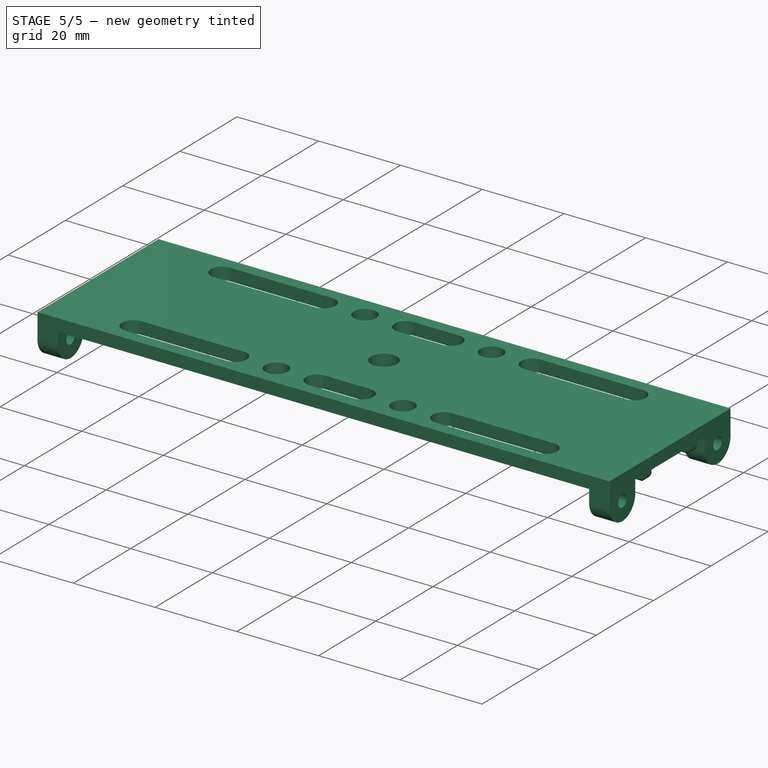
[diagram: stage 5 of 5 — iso view after this stage's code; geometry added in this stage tinted green]
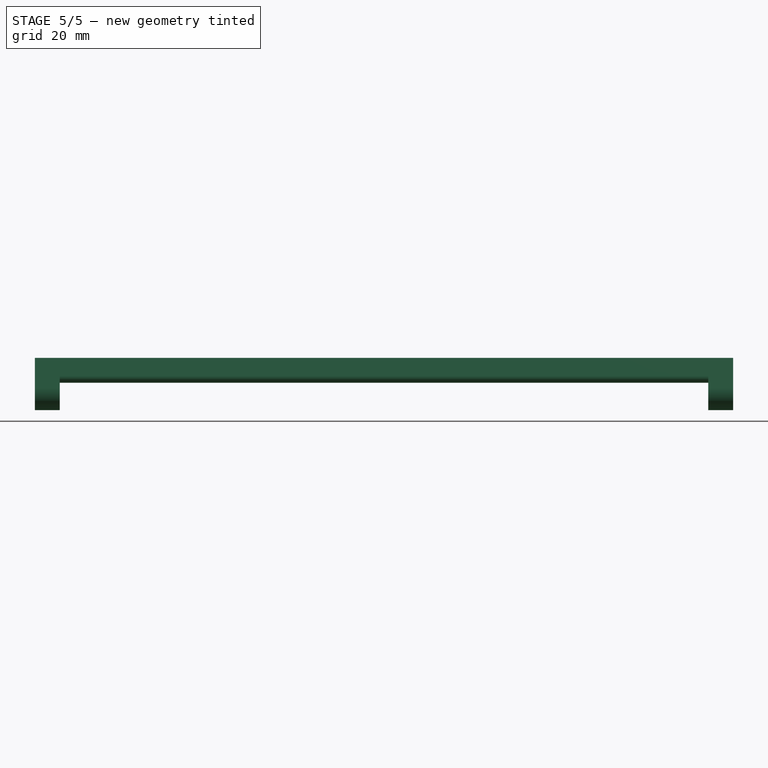
[diagram: stage 5 of 5 — front view after this stage's code; geometry added in this stage tinted green]
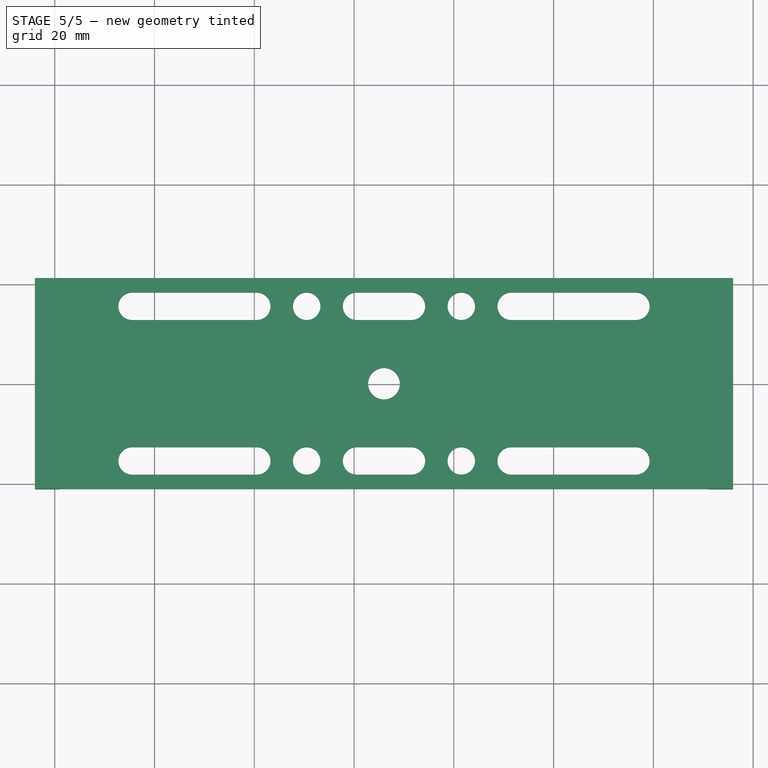
[diagram: stage 5 of 5 — top view after this stage's code; geometry added in this stage tinted green]
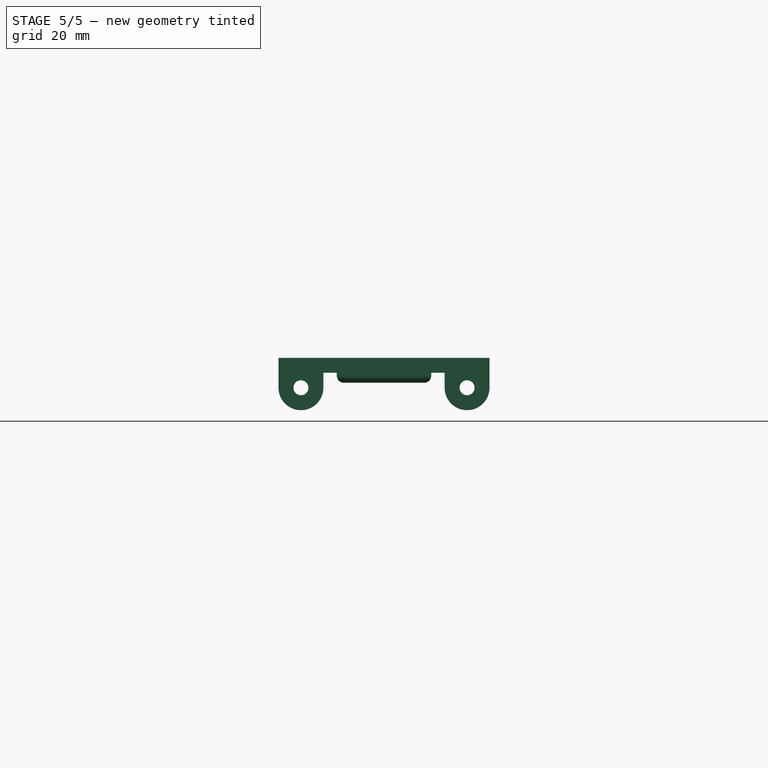
[diagram: stage 5 of 5 — right view after this stage's code; geometry added in this stage tinted green]
FEATURE [PartDesign::SubShapeBinder] Binder013
  BindCopyOnChange = 0
  BindMode = 0
  ClaimChildren = false
  Context = -> Body006 [Binder013.]
  Fuse = false
  MakeFace = true
  OffsetFill = false
  OffsetIntersection = false
  OffsetJoinType = 0
  OffsetOpenResult = false
  PartialLoad = false
  Relative = true
  Support = -> [Body005[Pad013.Face20]]
  _Version = 2
FEATURE [PartDesign::SubShapeBinder] Binder014
  BindCopyOnChange = 0
  BindMode = 0
  ClaimChildren = false
  Context = -> Body006 [Binder014.]
  Fuse = false
  MakeFace = true
  OffsetFill = false
  OffsetIntersection = false
  OffsetJoinType = 0
  OffsetOpenResult = false
  PartialLoad = false
  Relative = true
  Support = -> [Body004[Pocket003.Face31]]
  _Version = 2
FEATURE [Sketcher::SketchObject] Sketch030
  ExternalGeometry = -> [Binder013]
  FullyConstrained = true
  MapMode = 5
  Placement = pos=(-204,0,0) rot=(0.57735,0.57735,0.57735;2.0944rad)
  Support = -> [Binder013]
  sketch-geometry (4):
    g0: LineSegment StartX=21.15 StartY=-65.7022 StartZ=0 EndX=-21.15 EndY=-65.7022 EndZ=0
    g1: LineSegment StartX=-21.15 StartY=-65.7022 StartZ=0 EndX=-21.15 EndY=-68.7022 EndZ=0
    g2: LineSegment StartX=-21.15 StartY=-68.7022 StartZ=0 EndX=21.15 EndY=-68.7022 EndZ=0
    g3: LineSegment StartX=21.15 StartY=-68.7022 StartZ=0 EndX=21.15 EndY=-65.7022 EndZ=0
  constraints (11):
    c: Coincident(g0,g1)
    c: Coincident(g1,g2)
    c: Coincident(g2,g3)
    c: Coincident(g3,g0)
    c: Horizontal(g0)
    c: Horizontal(g2)
    c: Vertical(g1)
    c: Vertical(g3)
    c: PointOnObject(g0,g-5)
    c: Coincident(g1,g-4)
    c: Distance(g3) = 3
FEATURE [Sketcher::SketchObject] Sketch031
  ExternalGeometry = -> [Sketch030]
  FullyConstrained = true
  MapMode = 5
  Placement = pos=(-64,0,0) rot=(0.57735,-0.57735,-0.57735;2.0944rad)
  Support = -> [Binder014]
  sketch-geometry (4):
    g0: LineSegment StartX=-21.15 StartY=-65.7022 StartZ=0 EndX=21.15 EndY=-65.7022 EndZ=0
    g1: LineSegment StartX=21.15 StartY=-65.7022 StartZ=0 EndX=21.15 EndY=-68.7022 EndZ=0
    g2: LineSegment StartX=21.15 StartY=-68.7022 StartZ=0 EndX=-21.15 EndY=-68.7022 EndZ=0
    g3: LineSegment StartX=-21.15 StartY=-68.7022 StartZ=0 EndX=-21.15 EndY=-65.7022 EndZ=0
  constraints (10):
    c: Coincident(g0,g1)
    c: Coincident(g1,g2)
    c: Coincident(g2,g3)
    c: Coincident(g3,g0)
    c: Horizontal(g0)
    c: Horizontal(g2)
    c: Vertical(g1)
    c: Vertical(g3)
    c: Coincident(g0,g-3)
    c: Coincident(g1,g-4)
FEATURE [PartDesign::AdditiveLoft] AdditiveLoft003
  Closed = false
  Profile = -> Sketch030
  Ruled = false
  Sections = -> [Sketch031]
FEATURE [Sketcher::SketchObject] Sketch032
  ExternalGeometry = -> [Binder014]
  FullyConstrained = true
  MapMode = 5
  Placement = pos=(-64,0,0) rot=(0.57735,-0.57735,-0.57735;2.0944rad)
  Support = -> [Binder014]
  sketch-geometry (10):
    g0: LineSegment StartX=-12.15 StartY=-71.7022 StartZ=0 EndX=-12.15 EndY=-68.7022 EndZ=0
    g1: LineSegment StartX=-12.15 StartY=-68.7022 StartZ=0 EndX=-21.15 EndY=-68.7022 EndZ=0
    g2: LineSegment StartX=-21.15 StartY=-68.7022 StartZ=0 EndX=-21.15 EndY=-71.7022 EndZ=0
    g3: LineSegment StartX=12.15 StartY=-71.7022 StartZ=0 EndX=12.15 EndY=-68.7022 EndZ=0
    g4: LineSegment StartX=12.15 StartY=-68.7022 StartZ=0 EndX=21.15 EndY=-68.7022 EndZ=0
    g5: LineSegment StartX=21.15 StartY=-68.7022 StartZ=0 EndX=21.15 EndY=-71.7022 EndZ=0
    g6: ArcOfCircle CenterX=-16.65 CenterY=-71.7022 CenterZ=0 NormalX=0 NormalY=0 NormalZ=1 AngleXU=0 Radius=4.5 StartAngle=3.14159 EndAngle=6.28319
    g7: ArcOfCircle CenterX=16.65 CenterY=-71.7022 CenterZ=0 NormalX=0 NormalY=0 NormalZ=1 AngleXU=0 Radius=4.5 StartAngle=3.14159 EndAngle=6.28319
    g8: Circle CenterX=-16.65 CenterY=-71.7022 CenterZ=0 NormalX=0 NormalY=0 NormalZ=1 AngleXU=0 Radius=1.5
    g9: Circle CenterX=16.65 CenterY=-71.7022 CenterZ=0 NormalX=0 NormalY=0 NormalZ=1 AngleXU=0 Radius=1.5
  constraints (22):
    c: Coincident(g0,g-7)
    c: Coincident(g0,g-7)
    c: Coincident(g1,g0)
    c: Coincident(g1,g-8)
    c: Coincident(g2,g1)
    c: Coincident(g2,g-8)
    c: Coincident(g3,g-5)
    c: Coincident(g3,g-5)
    c: Coincident(g4,g3)
    c: Coincident(g4,g-6)
    c: Coincident(g5,g4)
    c: Coincident(g5,g-6)
    c: Coincident(g6,g2)
    c: Coincident(g6,g0)
    c: Coincident(g7,g3)
    c: Coincident(g7,g5)
    c: Equal(g7,g-10)
    c: Equal(g6,g-9)
    c: Coincident(g8,g6)
    c: Coincident(g9,g7)
    c: Equal(g-3,g8)
    c: Equal(g9,g-4)
FEATURE [PartDesign::Pad] Pad014
  BaseFeature = -> AdditiveLoft003
  Direction = (-1,0,0)
  Length = 5
  Length2 = 10
  Profile = -> Sketch032
  ReferenceAxis = -> Sketch032 [N_Axis]
  Type = 0
FEATURE [Sketcher::SketchObject] Sketch033
  ExternalGeometry = -> [Binder013]
  FullyConstrained = true
  MapMode = 5
  Placement = pos=(-204,0,0) rot=(0.57735,0.57735,0.57735;2.0944rad)
  Support = -> [Binder013]
  sketch-geometry (10):
    g0: Circle CenterX=-16.65 CenterY=-71.7022 CenterZ=0 NormalX=0 NormalY=0 NormalZ=1 AngleXU=0 Radius=1.50003
    g1: Circle CenterX=16.65 CenterY=-71.7022 CenterZ=0 NormalX=0 NormalY=0 NormalZ=1 AngleXU=0 Radius=1.50003
    g2: LineSegment StartX=-21.15 StartY=-71.7022 StartZ=0 EndX=-21.15 EndY=-68.7022 EndZ=0
    g3: LineSegment StartX=-21.15 StartY=-68.7022 StartZ=0 EndX=-12.15 EndY=-68.7022 EndZ=0
    g4: LineSegment StartX=-12.15 StartY=-68.7022 StartZ=0 EndX=-12.15 EndY=-71.7022 EndZ=0
    g5: LineSegment StartX=12.15 StartY=-71.7022 StartZ=0 EndX=12.15 EndY=-68.7022 EndZ=0
    g6: LineSegment StartX=12.15 StartY=-68.7022 StartZ=0 EndX=21.15 EndY=-68.7022 EndZ=0
    g7: LineSegment StartX=21.15 StartY=-68.7022 StartZ=0 EndX=21.15 EndY=-71.7022 EndZ=0
    g8: ArcOfCircle CenterX=-16.65 CenterY=-71.7023 CenterZ=0 NormalX=0 NormalY=0 NormalZ=1 AngleXU=0 Radius=4.5 StartAngle=3.14158 EndAngle=6.28319
    g9: ArcOfCircle CenterX=16.65 CenterY=-71.7023 CenterZ=0 NormalX=0 NormalY=0 NormalZ=1 AngleXU=0 Radius=4.5 StartAngle=3.14158 EndAngle=6.28319
  constraints (22):
    c: Coincident(g0,g-8)
    c: Tangent(g0,g-3)
    c: Coincident(g1,g-7)
    c: Tangent(g1,g-4)
    c: Coincident(g2,g-10)
    c: Coincident(g2,g-10)
    c: Coincident(g3,g2)
    c: Coincident(g3,g-9)
    c: Coincident(g4,g3)
    c: Coincident(g4,g-9)
    c: Coincident(g5,g-7)
    c: Coincident(g5,g-5)
    c: Coincident(g6,g5)
    c: Coincident(g6,g-6)
    c: Coincident(g7,g6)
    c: Coincident(g7,g-7)
    c: Coincident(g8,g2)
    c: Coincident(g8,g4)
    c: Coincident(g9,g5)
    c: Coincident(g9,g7)
    c: Equal(g9,g-7)
    c: Equal(g8,g-8)
FEATURE [PartDesign::Pad] Pad015
  BaseFeature = -> Pad014
  Direction = (1,0,0)
  Length = 5
  Length2 = 10
  Profile = -> Sketch033
  ReferenceAxis = -> Sketch033 [N_Axis]
  Type = 0
FEATURE [PartDesign::SubShapeBinder] Binder015
  BindCopyOnChange = 0
  BindMode = 0
  ClaimChildren = false
  Context = -> Body006 [Binder015.]
  Fuse = false
  MakeFace = true
  OffsetFill = false
  OffsetIntersection = false
  OffsetJoinType = 0
  OffsetOpenResult = false
  PartialLoad = false
  Relative = true
  Support = -> [Body002[Pocket.Face7]]
  _Version = 2
FEATURE [Sketcher::SketchObject] Sketch038
  ExternalGeometry = -> [Binder015,Pad015]
  FullyConstrained = true
  MapMode = 5
  Placement = pos=(0,0,-68.7022) rot=(1,0,0;3.14159rad)
  Support = -> [Pad015]
  sketch-geometry (35):
    g0: Circle CenterX=-149.5 CenterY=15.5 CenterZ=0 NormalX=0 NormalY=0 NormalZ=1 AngleXU=0 Radius=2.75
    g1: Circle CenterX=-118.5 CenterY=15.5 CenterZ=0 NormalX=0 NormalY=0 NormalZ=1 AngleXU=0 Radius=2.75
    g2: Circle CenterX=-118.5 CenterY=-15.5 CenterZ=0 NormalX=0 NormalY=0 NormalZ=1 AngleXU=0 Radius=2.75
    g3: Circle CenterX=-149.5 CenterY=-15.5 CenterZ=0 NormalX=0 NormalY=0 NormalZ=1 AngleXU=0 Radius=2.75
    g4: Circle CenterX=-134 CenterY=0 CenterZ=0 NormalX=0 NormalY=0 NormalZ=1 AngleXU=0 Radius=3.175
    g5: LineSegment StartX=-149.5 StartY=15.5 StartZ=0 EndX=-118.5 EndY=-15.5 EndZ=0
    g6: ArcOfCircle CenterX=-159.5 CenterY=15.5 CenterZ=0 NormalX=0 NormalY=0 NormalZ=1 AngleXU=0 Radius=2.75 StartAngle=4.71239 EndAngle=7.85398
    g7: ArcOfCircle CenterX=-184.5 CenterY=15.5 CenterZ=0 NormalX=0 NormalY=0 NormalZ=1 AngleXU=0 Radius=2.75 StartAngle=1.5708 EndAngle=4.71239
    g8: LineSegment StartX=-159.5 StartY=18.25 StartZ=0 EndX=-184.5 EndY=18.25 EndZ=0
    g9: LineSegment StartX=-184.5 StartY=12.75 StartZ=0 EndX=-159.5 EndY=12.75 EndZ=0
    g10: ArcOfCircle CenterX=-159.5 CenterY=-15.5 CenterZ=0 NormalX=0 NormalY=0 NormalZ=1 AngleXU=0 Radius=2.75 StartAngle=4.71239 EndAngle=7.85398
    g11: ArcOfCircle CenterX=-184.5 CenterY=-15.5 CenterZ=0 NormalX=0 NormalY=0 NormalZ=1 AngleXU=0 Radius=2.75 StartAngle=1.5708 EndAngle=4.71239
    g12: LineSegment StartX=-159.5 StartY=-12.75 StartZ=0 EndX=-184.5 EndY=-12.75 EndZ=0
    g13: LineSegment StartX=-184.5 StartY=-18.25 StartZ=0 EndX=-159.5 EndY=-18.25 EndZ=0
    g14: ArcOfCircle CenterX=-108.5 CenterY=-15.5 CenterZ=0 NormalX=0 NormalY=0 NormalZ=1 AngleXU=0 Radius=2.75 StartAngle=1.5708 EndAngle=4.71239
    g15: ArcOfCircle CenterX=-83.5 CenterY=-15.5 CenterZ=0 NormalX=0 NormalY=0 NormalZ=1 AngleXU=0 Radius=2.75 StartAngle=4.71239 EndAngle=7.85398
    g16: LineSegment StartX=-108.5 StartY=-18.25 StartZ=0 EndX=-83.5 EndY=-18.25 EndZ=0
    g17: LineSegment StartX=-83.5 StartY=-12.75 StartZ=0 EndX=-108.5 EndY=-12.75 EndZ=0
    g18: ArcOfCircle CenterX=-108.5 CenterY=15.5 CenterZ=0 NormalX=0 NormalY=0 NormalZ=1 AngleXU=0 Radius=2.75 StartAngle=1.5708 EndAngle=4.71239
    g19: ArcOfCircle CenterX=-83.5 CenterY=15.5 CenterZ=0 NormalX=0 NormalY=0 NormalZ=1 AngleXU=0 Radius=2.75 StartAngle=4.71239 EndAngle=7.85398
    g20: LineSegment StartX=-108.5 StartY=12.75 StartZ=0 EndX=-83.5 EndY=12.75 EndZ=0
    g21: LineSegment StartX=-83.5 StartY=18.25 StartZ=0 EndX=-108.5 EndY=18.25 EndZ=0
    g22: LineSegment StartX=-204 StartY=15.5 StartZ=0 EndX=-64 EndY=15.5 EndZ=0
    g23: LineSegment StartX=-108.5 StartY=15.5 StartZ=0 EndX=-108.5 EndY=-15.5 EndZ=0
    g24: LineSegment StartX=-159.5 StartY=15.5 StartZ=0 EndX=-159.5 EndY=-15.5 EndZ=0
    g25: LineSegment StartX=-204 StartY=-15.5 StartZ=0 EndX=-64 EndY=-15.5 EndZ=0
    g26: ArcOfCircle CenterX=-128.5 CenterY=15.5 CenterZ=0 NormalX=0 NormalY=0 NormalZ=1 AngleXU=0 Radius=2.75 StartAngle=4.71239 EndAngle=7.85398
    g27: ArcOfCircle CenterX=-139.5 CenterY=15.5 CenterZ=0 NormalX=0 NormalY=0 NormalZ=1 AngleXU=0 Radius=2.75 StartAngle=1.5708 EndAngle=4.71239
    g28: LineSegment StartX=-128.5 StartY=18.25 StartZ=0 EndX=-139.5 EndY=18.25 EndZ=0
    g29: LineSegment StartX=-139.5 StartY=12.75 StartZ=0 EndX=-128.5 EndY=12.75 EndZ=0
    g30: ArcOfCircle CenterX=-139.5 CenterY=-15.5 CenterZ=0 NormalX=0 NormalY=0 NormalZ=1 AngleXU=0 Radius=2.75 StartAngle=1.5708 EndAngle=4.71239
    g31: ArcOfCircle CenterX=-128.5 CenterY=-15.5 CenterZ=0 NormalX=0 NormalY=0 NormalZ=1 AngleXU=0 Radius=2.75 StartAngle=4.71239 EndAngle=7.85398
    g32: LineSegment StartX=-139.5 StartY=-18.25 StartZ=0 EndX=-128.5 EndY=-18.25 EndZ=0
    g33: LineSegment StartX=-128.5 StartY=-12.75 StartZ=0 EndX=-139.5 EndY=-12.75 EndZ=0
    g34: LineSegment StartX=-139.5 StartY=15.5 StartZ=0 EndX=-139.5 EndY=-15.5 EndZ=0
  constraints (87):
    c: Coincident(g0,g-3)
    c: Coincident(g1,g-4)
    c: Coincident(g2,g-6)
    c: Coincident(g3,g-5)
    c: PointOnObject(g4,g-1)
    c: Diameter(g4) = 6.35
    c: Equal(g0,g1)
    c: Equal(g1,g2)
    c: Coincident(g5,g0)
    c: Coincident(g5,g2)
    c: PointOnObject(g4,g5)
    c: Equal(g3,g2)
    c: Equal(g3,g-5)
    c: Tangent(g6,g8) = -1.5708
    c: Tangent(g8,g7) = -1.5708
    c: Tangent(g7,g9) = -1.5708
    c: Tangent(g9,g6) = -1.5708
    c: Equal(g6,g7)
    c: Horizontal(g8)
    c: Tangent(g10,g12) = -1.5708
    c: Tangent(g12,g11) = -1.5708
    c: Tangent(g11,g13) = -1.5708
    c: Tangent(g13,g10) = -1.5708
    c: Equal(g10,g11)
    c: Horizontal(g12)
    c: Tangent(g14,g16) = -1.5708
    c: Tangent(g16,g15) = -1.5708
    c: Tangent(g15,g17) = -1.5708
    c: Tangent(g17,g14) = -1.5708
    c: Equal(g14,g15)
    c: Horizontal(g16)
    c: Tangent(g18,g20) = -1.5708
    c: Tangent(g20,g19) = -1.5708
    c: Tangent(g19,g21) = -1.5708
    c: Tangent(g21,g18) = -1.5708
    c: Equal(g18,g19)
    c: Horizontal(g20)
    c: Equal(g6,g10)
    c: Equal(g10,g14)
    c: Equal(g14,g18)
    c: Equal(g18,g0)
    c: PointOnObject(g22,g-8)
    c: PointOnObject(g22,g-7)
    c: Horizontal(g22)
    c: PointOnObject(g19,g22)
    c: PointOnObject(g6,g22)
    c: PointOnObject(g0,g22)
    c: Distance(g8) = 25
    c: Distance(g0,g6) = 10
    c: Equal(g12,g8)
    c: Equal(g8,g21)
    c: Equal(g21,g17)
    c: Distance(g18,g1) = 10
    c: Coincident(g23,g18)
    c: Coincident(g23,g14)
    c: Coincident(g24,g6)
    c: Coincident(g24,g10)
    c: Vertical(g24)
    c: PointOnObject(g25,g-8)
    c: PointOnObject(g25,g-7)
    c: Horizontal(g25)
    c: PointOnObject(g15,g25)
    c: PointOnObject(g10,g25)
    c: PointOnObject(g3,g25)
    c: Vertical(g23)
    c: Tangent(g26,g28) = -1.5708
    c: Tangent(g28,g27) = -1.5708
    c: Tangent(g27,g29) = -1.5708
    c: Tangent(g29,g26) = -1.5708
    c: Equal(g26,g27)
    c: PointOnObject(g26,g22)
    c: PointOnObject(g27,g22)
    c: Equal(g26,g1)
    c: Tangent(g30,g32) = -1.5708
    c: Tangent(g32,g31) = -1.5708
    c: Tangent(g31,g33) = -1.5708
    c: Tangent(g33,g30) = -1.5708
    c: Equal(g30,g31)
    c: PointOnObject(g30,g25)
    c: PointOnObject(g31,g25)
    c: Equal(g31,g26)
    c: Equal(g33,g28)
    c: Coincident(g34,g27)
    c: Coincident(g34,g30)
    c: Vertical(g34)
    c: Distance(g27,g0) = 10
    c: Distance(g1,g26) = 10
FEATURE [PartDesign::Pocket] Pocket005
  BaseFeature = -> Pad015
  Direction = (0,0,1)
  Length = 5
  Length2 = 5
  Profile = -> Sketch038
  ReferenceAxis = -> Sketch038 [N_Axis]
  Type = 0
FEATURE [PartDesign::Body] Body003  label="Static-Handle-2"
  Group = -> [Binder005,Binder006,Sketch015,Pad010,Sketch041,Sketch042,DatumPlane002,Sketch043,Pad017,Fillet003]
  Origin = -> Origin003
  Tip = -> Fillet003
FEATURE [Sketcher::SketchObject] Sketch044
  ExternalGeometry = -> [Pocket005]
  FullyConstrained = true
  MapMode = 5
  Placement = pos=(0,0,-68.7022) rot=(1,0,0;3.14159rad)
  Support = -> [Pocket005]
  sketch-geometry (12):
    g0: LineSegment StartX=-204 StartY=9.4625 StartZ=0 EndX=-64 EndY=9.4625 EndZ=0
    g1: LineSegment StartX=-64 StartY=9.4625 StartZ=0 EndX=-64 EndY=6.4625 EndZ=0
    g2: LineSegment StartX=-64 StartY=6.4625 StartZ=0 EndX=-204 EndY=6.4625 EndZ=0
    g3: LineSegment StartX=-204 StartY=6.4625 StartZ=0 EndX=-204 EndY=9.4625 EndZ=0
    g4: LineSegment StartX=-64 StartY=-6.4625 StartZ=0 EndX=-204 EndY=-6.4625 EndZ=0
    g5: LineSegment StartX=-204 StartY=-6.4625 StartZ=0 EndX=-204 EndY=-9.4625 EndZ=0
    g6: LineSegment StartX=-204 StartY=-9.4625 StartZ=0 EndX=-64 EndY=-9.4625 EndZ=0
    g7: LineSegment StartX=-64 StartY=-9.4625 StartZ=0 EndX=-64 EndY=-6.4625 EndZ=0
    g8: LineSegment StartX=-134 StartY=3.175 StartZ=0 EndX=-134 EndY=6.4625 EndZ=0
    g9: LineSegment StartX=-134 StartY=9.4625 StartZ=0 EndX=-134 EndY=12.75 EndZ=0
    g10: LineSegment StartX=-134 StartY=-9.4625 StartZ=0 EndX=-134 EndY=-12.75 EndZ=0
    g11: LineSegment StartX=-134 StartY=-6.4625 StartZ=0 EndX=-134 EndY=-3.175 EndZ=0
  constraints (38):
    c: Coincident(g0,g1)
    c: Coincident(g1,g2)
    c: Coincident(g2,g3)
    c: Coincident(g3,g0)
    c: Horizontal(g0)
    c: Horizontal(g2)
    c: Vertical(g1)
    c: Vertical(g3)
    c: PointOnObject(g0,g-4)
    c: PointOnObject(g1,g-5)
    c: Coincident(g4,g5)
    c: Coincident(g5,g6)
    c: Coincident(g6,g7)
    c: Coincident(g7,g4)
    c: Horizontal(g4)
    c: Horizontal(g6)
    c: Vertical(g5)
    c: Vertical(g7)
    c: PointOnObject(g4,g-5)
    c: PointOnObject(g5,g-4)
    c: PointOnObject(g8,g-3)
    c: PointOnObject(g8,g2)
    c: PointOnObject(g9,g0)
    c: Vertical(g9)
    c: PointOnObject(g10,g6)
    c: Vertical(g10)
    c: PointOnObject(g11,g4)
    c: PointOnObject(g11,g-3)
    c: Vertical(g11)
    c: Equal(g10,g11)
    c: Equal(g11,g9)
    c: Equal(g9,g8)
    c: Vertical(g8)
    c: Perpendicular(g-3,g8)
    c: Perpendicular(g-3,g11)
    c: Distance(g11,g10) = 3
    c: Symmetric(g-7,g-7,g10)
    c: Symmetric(g-6,g-6,g9)
FEATURE [PartDesign::Pad] Pad018
  BaseFeature = -> Pocket005
  Direction = (0,0,-1)
  Length = 2
  Length2 = 10
  Profile = -> Sketch044
  ReferenceAxis = -> Sketch044 [N_Axis]
  Type = 0
FEATURE [PartDesign::Fillet] Fillet004
  Base = -> Pad018 [Face52,Face55]
  BaseFeature = -> Pad018
  Radius = 1.4
  SupportTransform = false
  UseAllEdges = false
FEATURE [PartDesign::Body] Body001  label="Static-Handle-1"
  Group = -> [Binder,Binder001,Binder002,Sketch009,Pad007,Sketch024,Pad012,Sketch025,Pocket004,Fillet001,Sketch034,Sketch035,DatumPlane001,Sketch036,Pad016,Fillet002,Sketch045,Pad019]
  Origin = -> Origin001
  Tip = -> Pad019
FEATURE [Sketcher::SketchObject] Sketch046
  ExternalGeometry = -> [Fillet004]
  FullyConstrained = true
  MapMode = 5
  Placement = pos=(0,0,-68.7022) rot=(1,0,0;3.14159rad)
  Support = -> [Fillet004]
  sketch-geometry (7):
    g0: LineSegment StartX=-141.862 StartY=7.8625 StartZ=0 EndX=-126.138 EndY=7.8625 EndZ=0
    g1: LineSegment StartX=-126.138 StartY=7.8625 StartZ=0 EndX=-126.138 EndY=-7.8625 EndZ=0
    g2: LineSegment StartX=-126.138 StartY=-7.8625 StartZ=0 EndX=-141.862 EndY=-7.8625 EndZ=0
    g3: LineSegment StartX=-141.862 StartY=-7.8625 StartZ=0 EndX=-141.862 EndY=7.8625 EndZ=0
    g4: Circle CenterX=-134 CenterY=0 CenterZ=0 NormalX=0 NormalY=0 NormalZ=1 AngleXU=0 Radius=3.175
    g5: GeomPoint X=-141.862 Y=0 Z=0
    g6: GeomPoint X=-126.138 Y=0 Z=0
  constraints (17):
    c: Coincident(g0,g1)
    c: Coincident(g1,g2)
    c: Coincident(g2,g3)
    c: Coincident(g3,g0)
    c: Horizontal(g0)
    c: Horizontal(g2)
    c: Vertical(g1)
    c: Vertical(g3)
    c: Coincident(g4,g-3)
    c: PointOnObject(g5,g3)
    c: PointOnObject(g6,g1)
    c: PointOnObject(g6,g-1)
    c: Symmetric(g5,g6,g4)
    c: Equal(g4,g-3)
    c: Equal(g0,g1)
    c: PointOnObject(g1,g-5)
    c: PointOnObject(g0,g-4)
FEATURE [PartDesign::Pad] Pad020
  BaseFeature = -> Fillet004
  Direction = (0,0,-1)
  Length = 2
  Length2 = 10
  Profile = -> Sketch046
  ReferenceAxis = -> Sketch046 [N_Axis]
  Type = 0
FEATURE [PartDesign::Fillet] Fillet005
  Base = -> Pad020 [Edge131,Edge27]
  BaseFeature = -> Pad020
  Radius = 1.3
  SupportTransform = false
  UseAllEdges = false
FEATURE [PartDesign::Body] Body006  label="Rot-Bridge"
  Group = -> [Binder013,Binder014,Sketch030,Sketch031,AdditiveLoft003,Sketch032,Pad014,Sketch033,Pad015,Binder015,Sketch038,Pocket005,Sketch044,Pad018,Fillet004,Sketch046,Pad020,Fillet005]
  Origin = -> Origin006
  Tip = -> Fillet005
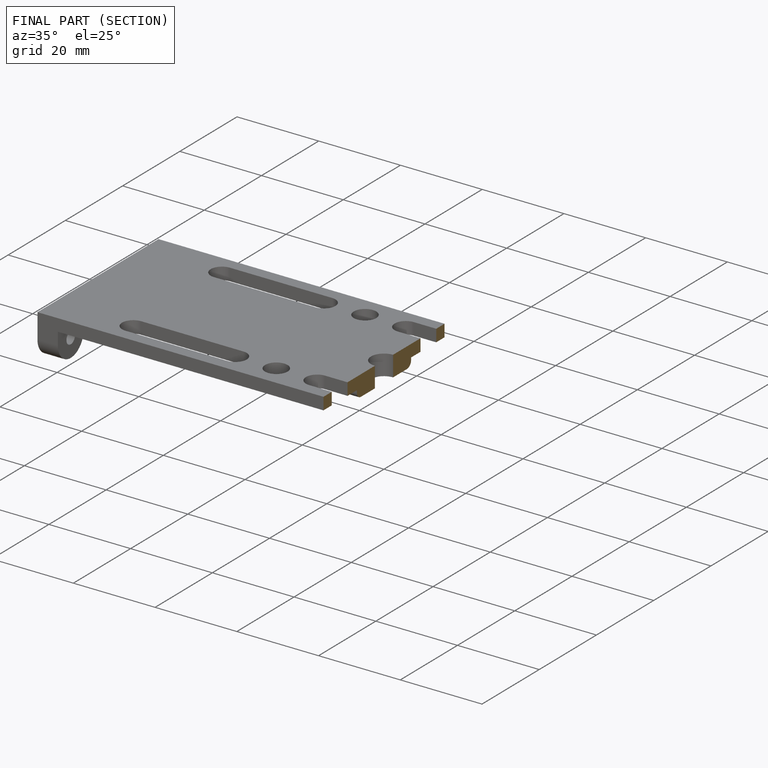
[diagram: finished part — half-section view (interior)]
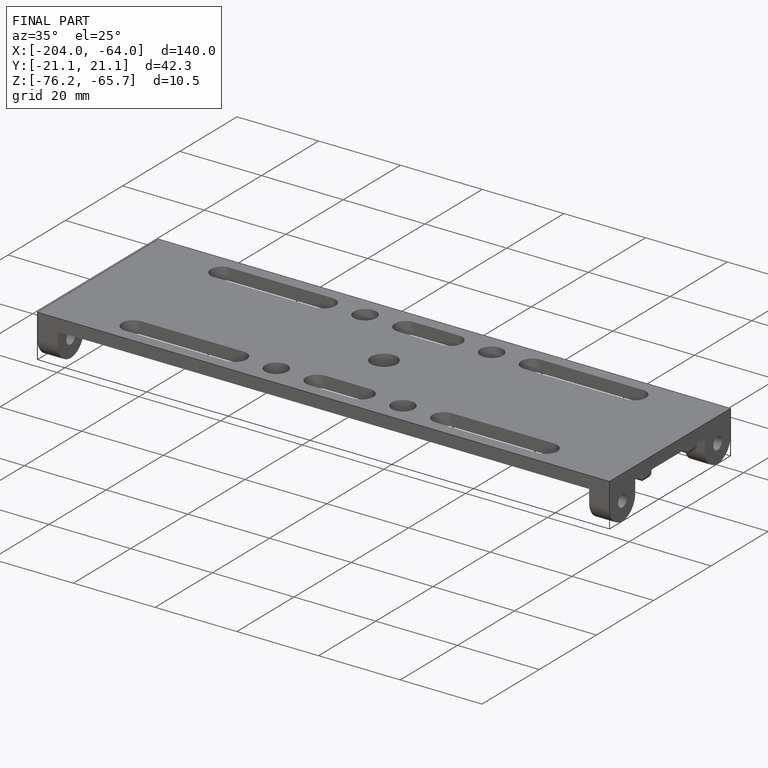
[diagram: finished part — iso view with bounding-box wireframe]
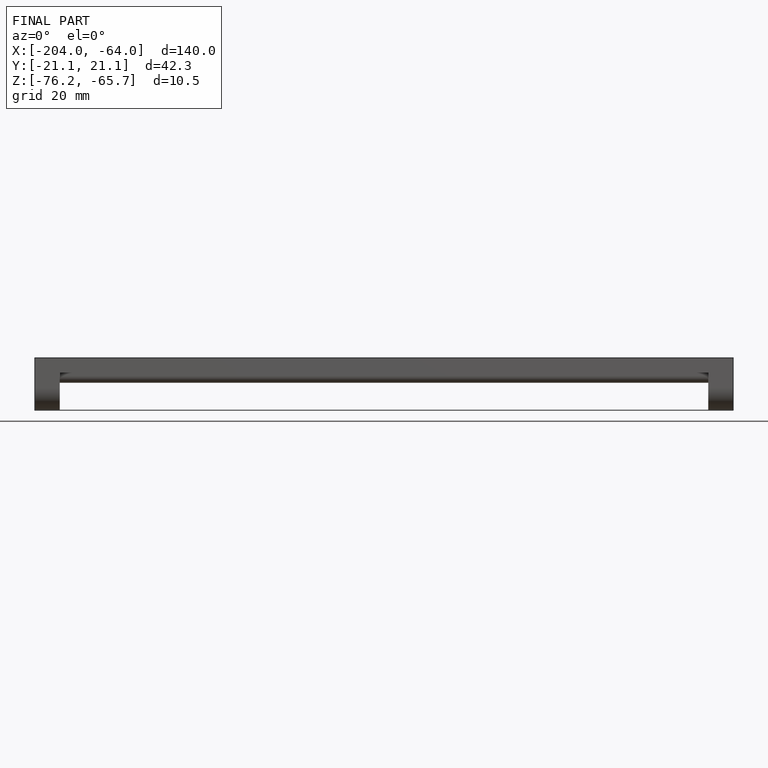
[diagram: finished part — front view with bounding-box wireframe]
